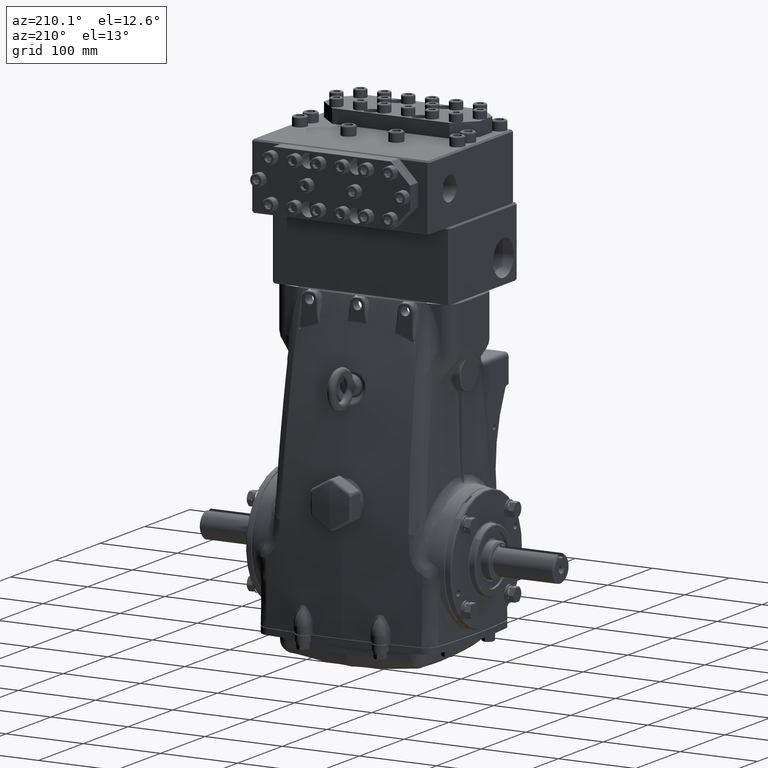
[diagram: clean part render]
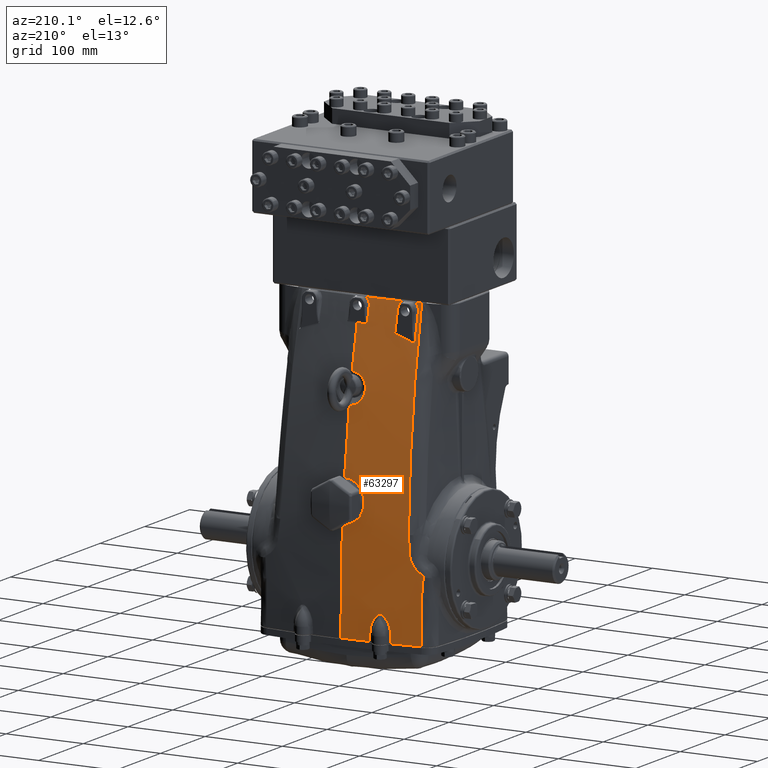
[diagram: same view with one face highlighted and labeled with its STEP entity id]
A machine part, auxiliary view. The second image highlights one B-rep face of the part: STEP entity #63297.
In plain terms, the highlighted face is a freeform B-spline surface patch.
Its self-contained STEP definition (entity closure, byte-faithful):
#41 = CARTESIAN_POINT ( 'NONE',  ( -1.329266084525905889, 2.058871190780679594, 11.77165354330707814 ) ) ;
#277 = VERTEX_POINT ( 'NONE', #111530 ) ;
#440 = CARTESIAN_POINT ( 'NONE',  ( -0.4894363973808239510, 2.826974963494966797, 8.292067753824921894 ) ) ;
#641 = CARTESIAN_POINT ( 'NONE',  ( -1.472692996134396193, 3.745382839037164402, -3.464566929133851669 ) ) ;
#791 = CARTESIAN_POINT ( 'NONE',  ( -1.449918851696318844, 3.753734697060149283, -2.974230008064877584 ) ) ;
#845 = CARTESIAN_POINT ( 'NONE',  ( -1.965461425135741402, 2.037939149699900643, 11.72106625223799448 ) ) ;
#1077 = CARTESIAN_POINT ( 'NONE',  ( -3.957781727276481476, 3.531041095253700135, -1.223694571038026702 ) ) ;
#1084 = CARTESIAN_POINT ( 'NONE',  ( -0.3402257065718306550, 2.366954046119728705, 10.57045864918167410 ) ) ;
#1222 = CARTESIAN_POINT ( 'NONE',  ( -1.787529890359793816, 3.726602407717397814, -3.618486580175581224 ) ) ;
#1369 = EDGE_CURVE ( 'NONE', #115554, #41796, #42658, .T. ) ;
#1383 = CARTESIAN_POINT ( 'NONE',  ( -1.706781216719245320, 3.744477168076211004, -2.308692450912484873 ) ) ;
#1388 = CARTESIAN_POINT ( 'NONE',  ( -0.4303187408758848420, 3.481930908896279764, 3.689970504205117408 ) ) ;
#1439 = CARTESIAN_POINT ( 'NONE',  ( -1.384605280618740331, 2.068704045436494887, 11.72107760048991310 ) ) ;
#1807 = CARTESIAN_POINT ( 'NONE',  ( -2.617725852477320814, 1.978464825337433730, 11.77166119179824477 ) ) ;
#1930 = CARTESIAN_POINT ( 'NONE',  ( -2.982365941603586812, 3.639752946394433142, -3.424424307866333006 ) ) ;
#1963 = CARTESIAN_POINT ( 'NONE',  ( -0.9321275115645024645, 3.518956238178291507, 3.200816758372077242 ) ) ;
#2101 = EDGE_CURVE ( 'NONE', #55108, #86129, #98032, .T. ) ;
#2247 = EDGE_CURVE ( 'NONE', #46825, #6960, #107942, .T. ) ;
#2264 = CARTESIAN_POINT ( 'NONE',  ( -0.5099476513739255035, 2.249991768607825904, 11.07376066516778756 ) ) ;
#2278 = CARTESIAN_POINT ( 'NONE',  ( -1.954602083126994350, 2.089217607679715094, 11.51134458017273232 ) ) ;
#2345 = VERTEX_POINT ( 'NONE', #59197 ) ;
#2388 = CARTESIAN_POINT ( 'NONE',  ( -3.031647876830131594, 3.734765732253502168, 1.666088105590217028 ) ) ;
#2547 = CARTESIAN_POINT ( 'NONE',  ( -1.014872599790400898, 3.576041965582272830, 2.522746861386393924 ) ) ;
#2701 = CARTESIAN_POINT ( 'NONE',  ( -0.4599714335869150572, 3.777865617049620539, -3.424427549298868279 ) ) ;
#2773 = EDGE_CURVE ( 'NONE', #96540, #55108, #50862, .T. ) ;
#2961 = CARTESIAN_POINT ( 'NONE',  ( -3.551367010160706883, 3.577911039005028826, -3.567180029828333154 ) ) ;
#3041 = EDGE_CURVE ( 'NONE', #12846, #93610, #28042, .T. ) ;
#3122 = CARTESIAN_POINT ( 'NONE',  ( -0.7111873637985548502, 3.626198381194201570, 1.983667925569553514 ) ) ;
#3126 = CARTESIAN_POINT ( 'NONE',  ( -0.3291895582289230404, 2.097288294947163401, 11.72108940143261435 ) ) ;
#3156 = EDGE_CURVE ( 'NONE', #28937, #68908, #16617, .T. ) ;
#3264 = CARTESIAN_POINT ( 'NONE',  ( -4.025192622172919954, 3.497319579811000612, -0.2757587623723024572 ) ) ;
#3549 = CARTESIAN_POINT ( 'NONE',  ( -4.162177659181298672, 1.810916226730489464, 11.77166884028940608 ) ) ;
#3703 = CARTESIAN_POINT ( 'NONE',  ( -0.1361358680656545306, 3.653276932960717094, 1.710316505711221069 ) ) ;
#3707 = CARTESIAN_POINT ( 'NONE',  ( -0.5099501571128451927, 2.188913224549203562, 11.33098419473978957 ) ) ;
#4144 = CARTESIAN_POINT ( 'NONE',  ( -4.507921337194059852, 2.987087808317399951, 6.788105265077242656 ) ) ;
#4300 = CARTESIAN_POINT ( 'NONE',  ( -3.065777193951899626, 1.951112401953881914, 11.71431663168090509 ) ) ;
#4505 = B_SPLINE_CURVE_WITH_KNOTS ( 'NONE', 3,
 ( #90575, #8794, #45233, #81650, #118036, #36299, #72692, #109063, #27326, #63733, #100129, #18346, #54794, #91165, #9365, #45803, #82228, #440, #36888, #73278 ),
 .UNSPECIFIED., .F., .F.,
 ( 4, 2, 2, 2, 2, 2, 2, 2, 2, 4 ),
 ( -5.999999999984440527E-08, 0.001004507607140069309, 0.002009075214280138695, 0.004018210428560277034, 0.006027345642840414505, 0.008036480857120553711, 0.01004561607140069292, 0.01105018367854074084, 0.01205475128568078702, 0.01607302171424088155 ),
 .UNSPECIFIED. ) ;
#4580 = CARTESIAN_POINT ( 'NONE',  ( -2.130487266154514447, 3.718528088726727354, -2.207560004171498669 ) ) ;
#4728 = CARTESIAN_POINT ( 'NONE',  ( -4.883510096892714536, 3.397906360537572557, -3.515873479481093078 ) ) ;
#5081 = B_SPLINE_CURVE_WITH_KNOTS ( 'NONE', 3,
 ( #48072, #84500, #2701, #39147, #75528, #111920 ),
 .UNSPECIFIED., .F., .F.,
 ( 4, 2, 4 ),
 ( 0.0000000000000000000, 0.5000000000000000000, 1.000000000000000000 ),
 .UNSPECIFIED. ) ;
#5166 = CARTESIAN_POINT ( 'NONE',  ( -2.408966609891268984, 3.697616689206262297, -2.634289480555723539 ) ) ;
#5266 = CARTESIAN_POINT ( 'NONE',  ( -0.7200750200131735834, 2.892394000260049225, 7.901765125337210982 ) ) ;
#5320 = CARTESIAN_POINT ( 'NONE',  ( -5.310323687472517484, 1.636152634401786710, 11.77167648878057982 ) ) ;
#5851 = CARTESIAN_POINT ( 'NONE',  ( -0.6442825459768660723, 2.987672721252179642, 7.353421126140273323 ) ) ;
#5902 = CARTESIAN_POINT ( 'NONE',  ( -5.472957139144666527, 1.607461474635036858, 11.77165354330708702 ) ) ;
#5979 = CARTESIAN_POINT ( 'NONE',  ( -0.5099501571128451927, 2.188913224549203562, 11.33098419473978957 ) ) ;
#6448 = CARTESIAN_POINT ( 'NONE',  ( -0.2467602516829825732, 3.048793748277973226, 7.013008565942077333 ) ) ;
#6624 = CARTESIAN_POINT ( 'NONE',  ( 1.997120727806269592E-15, 3.777525954651690832, -3.567180029828339816 ) ) ;
#6746 = CARTESIAN_POINT ( 'NONE',  ( -3.216296056407198733, 3.322383220422969519, 3.684119343499719257 ) ) ;
#6778 = CARTESIAN_POINT ( 'NONE',  ( -2.941961549966115808, 2.367296412994855270, 9.943150386837972476 ) ) ;
#6960 = VERTEX_POINT ( 'NONE', #28489 ) ;
#7156 = CARTESIAN_POINT ( 'NONE',  ( -2.730575176707549353E-15, 3.364668361119688811, 4.849011172016416182 ) ) ;
#7228 = CARTESIAN_POINT ( 'NONE',  ( -0.3105896146162692717, 2.085518312412143693, 11.77166884028937055 ) ) ;
#7815 = CARTESIAN_POINT ( 'NONE',  ( -0.5765648053574754517, 3.305574139112502419, 6.788105265077318151 ) ) ;
#7940 = CARTESIAN_POINT ( 'NONE',  ( -3.799504976992992500, 3.518995280183945695, -0.09031071293400218247 ) ) ;
#8400 = CARTESIAN_POINT ( 'NONE',  ( -0.7357084900246616543, 3.770215140498182738, -3.515873479481097519 ) ) ;
#8464 = EDGE_CURVE ( 'NONE', #25572, #114179, #23899, .T. ) ;
#8522 = CARTESIAN_POINT ( 'NONE',  ( -3.365474024887549209, 3.538810821463818534, 0.5950371287573616996 ) ) ;
#8667 = CARTESIAN_POINT ( 'NONE',  ( -2.860863417510001838, 1.995877690506875357, 11.61009406587339576 ) ) ;
#8794 = CARTESIAN_POINT ( 'NONE',  ( -0.01318330193096468525, 2.800346002481634233, 8.457339776401219922 ) ) ;
#8988 = CARTESIAN_POINT ( 'NONE',  ( -1.329266271122687249, 2.058865548201455287, 11.77167648878057093 ) ) ;
#9255 = B_SPLINE_CURVE_WITH_KNOTS ( 'NONE', 3,
 ( #82635, #845, #37293, #73686, #110063, #28307, #64726, #101121, #19342, #55779, #92162, #10358, #46797, #83237, #1439, #37885, #74262, #110639, #28899, #65325, #101714 ),
 .UNSPECIFIED., .F., .F.,
 ( 4, 2, 1, 1, 1, 2, 2, 1, 1, 2, 2, 2, 4 ),
 ( 0.3066511149771164457, 0.4434327218007036997, 0.4776281235066003328, 0.4947258243595484828, 0.4990002495727854370, 0.4995345527244400285, 0.5000688558760946201, 0.5011374621794038031, 0.5032746747860222802, 0.5118235252124958556, 0.5802143286242846809, 0.7169959354478618874, 0.8537775422714393159 ),
 .UNSPECIFIED. ) ;
#9302 = ORIENTED_EDGE ( 'NONE', *, *, #23759, .T. ) ;
#9365 = CARTESIAN_POINT ( 'NONE',  ( -0.4031742814179430368, 2.817228728147592509, 8.351817002820158820 ) ) ;
#9554 = CARTESIAN_POINT ( 'NONE',  ( -1.587140418288391031, 2.046886610755830116, 11.77165354330708347 ) ) ;
#9816 = VERTEX_POINT ( 'NONE', #69553 ) ;
#10001 = EDGE_CURVE ( 'NONE', #114179, #24720, #9255, .T. ) ;
#10004 = CARTESIAN_POINT ( 'NONE',  ( -3.957806744477383898, 3.530638751054765212, -3.424421330816489029 ) ) ;
#10089 = CARTESIAN_POINT ( 'NONE',  ( -1.449436370701254084, 3.752553886590621168, -3.068352961861494865 ) ) ;
#10152 = CARTESIAN_POINT ( 'NONE',  ( -1.788511416538851151, 3.729546461257702727, -3.464566929133858775 ) ) ;
#10305 = CARTESIAN_POINT ( 'NONE',  ( -1.651241377271888577, 3.747397938625225411, -2.384462525471408245 ) ) ;
#10311 = CARTESIAN_POINT ( 'NONE',  ( -0.1709548659399156012, 3.476263660354039775, 3.769316298084465000 ) ) ;
#10358 = CARTESIAN_POINT ( 'NONE',  ( -1.519630078844578458, 2.062335132724165909, 11.72107525303391817 ) ) ;
#10743 = CARTESIAN_POINT ( 'NONE',  ( -2.146033794240613801, 3.704131405258187737, -3.618486580175577672 ) ) ;
#10897 = CARTESIAN_POINT ( 'NONE',  ( -1.939589167925357627, 3.730718792896203784, -2.138605117172201364 ) ) ;
#10903 = CARTESIAN_POINT ( 'NONE',  ( -0.8830861765875457348, 3.511900387583742233, 3.290520753044550606 ) ) ;
#11013 = VERTEX_POINT ( 'NONE', #57660 ) ;
#11209 = CARTESIAN_POINT ( 'NONE',  ( -1.926166063787955851, 2.116497855686600094, 11.40493403542319939 ) ) ;
#11327 = CARTESIAN_POINT ( 'NONE',  ( -3.016919662918424283, 1.943005259688135311, 11.77166119179826786 ) ) ;
#11487 = CARTESIAN_POINT ( 'NONE',  ( -1.038168447748732071, 3.554005316135557813, 2.775159779836845697 ) ) ;
#11548 = CARTESIAN_POINT ( 'NONE',  ( -4.012125609158470496, 3.504591151798397863, -0.4380329796275670429 ) ) ;
#11858 = VERTEX_POINT ( 'NONE', #22711 ) ;
#11911 = CARTESIAN_POINT ( 'NONE',  ( -3.527390907750791449, 3.682618538920412021, 1.666088105590235902 ) ) ;
#12070 = CARTESIAN_POINT ( 'NONE',  ( -0.8730434109972416978, 3.607519185111385251, 2.179175908738508749 ) ) ;
#12488 = CARTESIAN_POINT ( 'NONE',  ( -3.910294049947788508, 3.534388280533546478, -3.567180029828337595 ) ) ;
#12652 = CARTESIAN_POINT ( 'NONE',  ( -0.2691537190594036622, 3.650592726429606749, 1.736892705629156097 ) ) ;
#12657 = CARTESIAN_POINT ( 'NONE',  ( -0.4941935595090318767, 2.158784960329666269, 11.45830862399616024 ) ) ;
#12659 = CARTESIAN_POINT ( 'NONE',  ( -2.761447177340050629, 1.977739888121200718, 11.72104401814720553 ) ) ;
#12790 = CARTESIAN_POINT ( 'NONE',  ( -3.957575300856117639, 3.502685695250202347, -0.1830250696565230983 ) ) ;
#12846 = VERTEX_POINT ( 'NONE', #10089 ) ;
#12923 = VERTEX_POINT ( 'NONE', #23779 ) ;
#13077 = CARTESIAN_POINT ( 'NONE',  ( -4.471409939085263296, 1.768526879999564150, 11.77166884028936167 ) ) ;
#13512 = CARTESIAN_POINT ( 'NONE',  ( -2.041536747216510683, 3.724301690662265685, -2.152060709845910136 ) ) ;
#13668 = CARTESIAN_POINT ( 'NONE',  ( -4.822432312687361389, 2.939410238287082588, 6.788105265077239991 ) ) ;
#14097 = CARTESIAN_POINT ( 'NONE',  ( -3.269204732900450772, 3.494166244084205619, 1.549803905489431921 ) ) ;
#14098 = CARTESIAN_POINT ( 'NONE',  ( -2.373803387733699477, 3.700704596208036712, -2.547482343565529828 ) ) ;
#14202 = CARTESIAN_POINT ( 'NONE',  ( -0.6889935401197521125, 2.875098908490986815, 8.003748954074408672 ) ) ;
#14250 = CARTESIAN_POINT ( 'NONE',  ( -5.167007128223317203, 3.352240164523032195, -3.515873479481088193 ) ) ;
#14256 = CARTESIAN_POINT ( 'NONE',  ( -1.448827917767014251, 3.751064775926534978, -3.187050668098594386 ) ) ;
#14440 = ORIENTED_EDGE ( 'NONE', *, *, #110945, .T. ) ;
#14798 = CARTESIAN_POINT ( 'NONE',  ( -0.7044343831057220395, 2.964847517012017875, 7.482613239523253412 ) ) ;
#14849 = CARTESIAN_POINT ( 'NONE',  ( -5.472957139144666527, 1.607455839589877478, 11.77167648878057982 ) ) ;
#15019 = VERTEX_POINT ( 'NONE', #14097 ) ;
#15398 = CARTESIAN_POINT ( 'NONE',  ( -0.3764466558203555246, 3.037604824634332346, 7.074679377445029616 ) ) ;
#15589 = CARTESIAN_POINT ( 'NONE',  ( -1.498576931234722276E-15, 3.879607779226441622, 1.666088105590230795 ) ) ;
#15712 = CARTESIAN_POINT ( 'NONE',  ( -3.257994996955968503, 3.467318692098095845, 1.977233875776326810 ) ) ;
#15894 = B_SPLINE_CURVE_WITH_KNOTS ( 'NONE', 3,
 ( #52564, #88966, #7156, #43596 ),
 .UNSPECIFIED., .F., .F.,
 ( 4, 4 ),
 ( 0.3170959034011918143, 0.5276515795325527058 ),
 .UNSPECIFIED. ) ;
#16006 = CARTESIAN_POINT ( 'NONE',  ( -0.004466962589221780411, 3.056492043544570603, 6.970738724759982574 ) ) ;
#16124 = EDGE_CURVE ( 'NONE', #2345, #11858, #5081, .T. ) ;
#16179 = CARTESIAN_POINT ( 'NONE',  ( -0.09192353991820584325, 3.777525954651690832, -3.567180029828339816 ) ) ;
#16303 = CARTESIAN_POINT ( 'NONE',  ( -3.057369498427757737, 2.057451332273736444, 11.28228488240600136 ) ) ;
#16394 = ORIENTED_EDGE ( 'NONE', *, *, #104904, .T. ) ;
#16617 = B_SPLINE_CURVE_WITH_KNOTS ( 'NONE', 3,
 ( #49654, #86081, #4300, #40740 ),
 .UNSPECIFIED., .F., .F.,
 ( 4, 4 ),
 ( -2.554761101910201521E-05, 0.0008907001007666442895 ),
 .UNSPECIFIED. ) ;
#16778 = CARTESIAN_POINT ( 'NONE',  ( -0.6073683692680799107, 2.081168051508167416, 11.77166884028946114 ) ) ;
#17369 = CARTESIAN_POINT ( 'NONE',  ( -0.8097481615696119350, 3.300345402231158687, 6.788105265077305717 ) ) ;
#17470 = B_SPLINE_SURFACE_WITH_KNOTS ( 'NONE', 3, 3, ( 
 ( #69945, #106300, #24580, #60979, #97382, #15589, #52033, #88433, #6624, #43082 ),
 ( #79492, #115872, #34136, #70540, #106895, #25181, #61579, #97984, #16179, #52635 ),
 ( #89038, #7228, #43665, #80083, #116468, #34729, #71132, #107488, #25756, #62169 ),
 ( #98579, #16778, #53226, #89611, #7815, #44262, #80675, #117060, #35311, #71709 ),
 ( #108087, #26347, #62751, #99166, #17369, #53810, #90198, #8400, #44837, #81259 ),
 ( #117646, #35902, #72298, #108671, #26936, #63344, #99746, #17953, #54390, #90777 ),
 ( #8988, #45414, #81832, #41, #36495, #72892, #109257, #27514, #63919, #100331 ),
 ( #18540, #54978, #91356, #9554, #45994, #82429, #641, #37084, #73464, #109846 ),
 ( #28105, #64509, #100906, #19122, #55561, #91951, #10152, #46590, #83010, #1222 ),
 ( #37674, #74048, #110428, #28680, #65107, #101503, #19730, #56159, #92540, #10743 ),
 ( #47177, #83595, #1807, #38255, #74630, #111020, #29272, #65694, #102091, #20323 ),
 ( #56744, #93122, #11327, #47759, #84185, #2388, #38845, #75216, #111601, #29867 ),
 ( #66279, #102663, #20898, #57319, #93704, #11911, #48334, #84766, #2961, #39422 ),
 ( #75800, #112181, #30444, #66857, #103242, #21485, #57907, #94281, #12488, #48927 ),
 ( #85350, #3549, #40003, #76383, #112768, #31032, #67445, #103830, #22068, #58504 ),
 ( #94876, #13077, #49508, #85936, #4144, #40594, #76970, #113345, #31619, #68025 ),
 ( #104413, #22658, #59079, #95462, #13668, #50099, #86518, #4728, #41174, #77565 ),
 ( #113938, #32200, #68610, #104999, #23257, #59678, #96049, #14250, #50691, #87113 ),
 ( #5320, #41752, #78148, #114534, #32809, #69216, #105588, #23847, #60267, #96646 ),
 ( #14849, #51295, #87707, #5902, #42359, #78750, #115136, #33400, #69800, #106174 ) ),
 .UNSPECIFIED., .F., .F., .F.,
 ( 4, 1, 1, 1, 1, 1, 1, 1, 1, 1, 1, 1, 1, 1, 1, 1, 1, 4 ),
 ( 4, 3, 3, 4 ),
 ( 0.0000000000000000000, 0.01992422968235842140, 0.03456898174906491983, 0.05424769559357718596, 0.06487690519641009512, 0.08584053764134867703, 0.09628566213973675791, 0.1159744118838200583, 0.1459144473511018725, 0.1632236321469078544, 0.1985379101840372418, 0.2282313374881382306, 0.2584266254959273201, 0.2665154733350832417, 0.2978309836667631938, 0.3195247496290842815, 0.3280157347226483333, 0.3567612557956247876 ),
 ( -1.534748082744804150E-06, 0.0000000000000000000, 1.000000000000000000, 1.010000000000000009 ),
 .UNSPECIFIED. ) ;
#17484 = B_SPLINE_CURVE_WITH_KNOTS ( 'NONE', 3,
 ( #73530, #109907, #28161, #64568 ),
 .UNSPECIFIED., .F., .F.,
 ( 4, 4 ),
 ( 0.0000000000000000000, 0.09124961659355938781 ),
 .UNSPECIFIED. ) ;
#17501 = CARTESIAN_POINT ( 'NONE',  ( -3.433946519524526675, 3.541807891261862462, 0.3751013449414513090 ) ) ;
#17644 = CARTESIAN_POINT ( 'NONE',  ( -2.789159188951548352, 1.981357588773585032, 11.69623137975671590 ) ) ;
#17953 = CARTESIAN_POINT ( 'NONE',  ( -0.9926801318544209440, 3.763193004573095468, -3.515873479481095298 ) ) ;
#18346 = CARTESIAN_POINT ( 'NONE',  ( -0.3334209560331198863, 2.811199870974268933, 8.389089763383898557 ) ) ;
#18540 = CARTESIAN_POINT ( 'NONE',  ( -1.587140593936352539, 2.046880967142413965, 11.77167648878057804 ) ) ;
#19053 = B_SPLINE_CURVE_WITH_KNOTS ( 'NONE', 3,
 ( #63024, #99431, #17644, #54082, #90463, #8667, #45113, #81534, #117911, #36175, #72575, #108940, #27205, #63618 ),
 .UNSPECIFIED., .F., .F.,
 ( 4, 2, 2, 2, 2, 2, 4 ),
 ( 0.002575890219645993184, 0.004021200030230096152, 0.005466509840814199120, 0.008357129461982540364, 0.009802439272566635525, 0.01124774908315072895, 0.01413836870431875795 ),
 .UNSPECIFIED. ) ;
#19122 = CARTESIAN_POINT ( 'NONE',  ( -1.886664034444553328, 2.030797768947446347, 11.77165354330708347 ) ) ;
#19234 = VERTEX_POINT ( 'NONE', #84113 ) ;
#19277 = CARTESIAN_POINT ( 'NONE',  ( -1.561445849148193288, 3.751560799230096332, -2.547479701091002635 ) ) ;
#19283 = CARTESIAN_POINT ( 'NONE',  ( -0.03439482075848510068, 3.475299937072046319, 3.782957108726558992 ) ) ;
#19286 = B_SPLINE_CURVE_WITH_KNOTS ( 'NONE', 3,
 ( #102742, #20975, #57397, #93783 ),
 .UNSPECIFIED., .F., .F.,
 ( 4, 4 ),
 ( 0.0000000000000000000, 1.000000000000000000 ),
 .UNSPECIFIED. ) ;
#19333 = ORIENTED_EDGE ( 'NONE', *, *, #92201, .T. ) ;
#19342 = CARTESIAN_POINT ( 'NONE',  ( -1.526628632518999940, 2.061996063256174683, 11.72107512962103648 ) ) ;
#19730 = CARTESIAN_POINT ( 'NONE',  ( -2.146720748381131028, 3.707084763531256488, -3.464566929133854778 ) ) ;
#19880 = CARTESIAN_POINT ( 'NONE',  ( -1.894064700851531446, 3.733532004044151087, -2.152060852376258104 ) ) ;
#19887 = CARTESIAN_POINT ( 'NONE',  ( -0.7116471241040901452, 3.495832151705702273, 3.500780652403853388 ) ) ;
#20323 = CARTESIAN_POINT ( 'NONE',  ( -2.592301817561208921, 3.670649920850951986, -3.618486580175592771 ) ) ;
#20479 = CARTESIAN_POINT ( 'NONE',  ( -1.029536805856871462, 3.545372507537897455, 2.877148303763660042 ) ) ;
#20538 = CARTESIAN_POINT ( 'NONE',  ( -3.958060253309640064, 3.528091304124755911, -1.065759574945015498 ) ) ;
#20560 = CARTESIAN_POINT ( 'NONE',  ( -0.3291895582289230404, 2.097288294947163401, 11.72108940143261435 ) ) ;
#20781 = CARTESIAN_POINT ( 'NONE',  ( -2.088656469346350963, 2.032627175226184413, 11.70908604693107158 ) ) ;
#20898 = CARTESIAN_POINT ( 'NONE',  ( -3.480378906165389807, 1.894771441545521018, 11.77166119179825365 ) ) ;
#20900 = CARTESIAN_POINT ( 'NONE',  ( -1.996016727116062484, 3.727187006497952204, -2.138605013861039073 ) ) ;
#20975 = CARTESIAN_POINT ( 'NONE',  ( -3.066175420260645712, 1.949430059391351611, 11.72103353889276711 ) ) ;
#21056 = CARTESIAN_POINT ( 'NONE',  ( -0.9080612999020492015, 3.602020801704116426, 2.237857949569839633 ) ) ;
#21103 = ORIENTED_EDGE ( 'NONE', *, *, #63521, .T. ) ;
#21195 = VERTEX_POINT ( 'NONE', #88071 ) ;
#21335 = B_SPLINE_CURVE_WITH_KNOTS ( 'NONE', 3,
 ( #74818, #111205, #29448, #65870 ),
 .UNSPECIFIED., .F., .F.,
 ( 4, 4 ),
 ( 5.721958498152796815E-17, 0.03613467663765863869 ),
 .UNSPECIFIED. ) ;
#21485 = CARTESIAN_POINT ( 'NONE',  ( -3.878130381996969245, 3.640430791935331811, 1.666088105590233237 ) ) ;
#21642 = CARTESIAN_POINT ( 'NONE',  ( -0.4613971952366459628, 3.643482884971372293, 1.807818510994648298 ) ) ;
#21647 = CARTESIAN_POINT ( 'NONE',  ( -0.4706159023382840423, 2.142253415653725845, 11.52856659615803636 ) ) ;
#21775 = CARTESIAN_POINT ( 'NONE',  ( -3.992174508698265178, 3.499121618092366326, -0.2063480383189231493 ) ) ;
#22068 = CARTESIAN_POINT ( 'NONE',  ( -4.271182549770040637, 3.487141134498844330, -3.567180029828350918 ) ) ;
#22393 = ORIENTED_EDGE ( 'NONE', *, *, #2101, .T. ) ;
#22658 = CARTESIAN_POINT ( 'NONE',  ( -4.792045262098615588, 1.720270123346609781, 11.77166884028934390 ) ) ;
#22711 = CARTESIAN_POINT ( 'NONE',  ( -1.447214697635420100, 3.747031218138626496, -3.424426838814072394 ) ) ;
#22800 = CARTESIAN_POINT ( 'NONE',  ( -4.024767326900356323, 3.497556249445210597, -0.2810403410606585051 ) ) ;
#23095 = CARTESIAN_POINT ( 'NONE',  ( -2.284190644097326750, 3.707775836355402976, -2.384464635550700429 ) ) ;
#23205 = CARTESIAN_POINT ( 'NONE',  ( -0.6153363000617203538, 2.851363484753544508, 8.145096329726753126 ) ) ;
#23239 = CARTESIAN_POINT ( 'NONE',  ( -2.614932794956200729E-16, 3.770281652882307988, -0.002669951958018486858 ) ) ;
#23257 = CARTESIAN_POINT ( 'NONE',  ( -5.126321490106023226, 2.891003839227130889, 6.788105265077255979 ) ) ;
#23759 = EDGE_CURVE ( 'NONE', #12923, #96540, #114225, .T. ) ;
#23779 = CARTESIAN_POINT ( 'NONE',  ( -3.957781727276481476, 3.531041095253700135, -1.223694571038026702 ) ) ;
#23795 = CARTESIAN_POINT ( 'NONE',  ( -0.7374127628471853768, 2.934633352471483825, 7.655894481554959441 ) ) ;
#23847 = CARTESIAN_POINT ( 'NONE',  ( -5.341353497338586109, 3.322595619793587307, -3.515873479481098851 ) ) ;
#23899 = B_SPLINE_CURVE_WITH_KNOTS ( 'NONE', 3,
 ( #56638, #93014, #11209, #47642, #84069, #2278, #38731, #75108, #111489, #29745, #66165, #102559, #20781, #57206 ),
 .UNSPECIFIED., .F., .F.,
 ( 4, 2, 2, 2, 2, 2, 4 ),
 ( 0.0000000000000000000, 0.002875428016093771466, 0.004313142024140652862, 0.005750856032187534259, 0.008626284048281444503, 0.01006399805632846554, 0.01150171206437548659 ),
 .UNSPECIFIED. ) ;
#24399 = CARTESIAN_POINT ( 'NONE',  ( -0.5032573366025500095, 3.020097481596065059, 7.171771856341910834 ) ) ;
#24580 = CARTESIAN_POINT ( 'NONE',  ( -5.245150282911112486E-15, 2.086612294879966356, 11.77166119179825188 ) ) ;
#24720 = VERTEX_POINT ( 'NONE', #20560 ) ;
#24984 = CARTESIAN_POINT ( 'NONE',  ( -0.02264095333679216199, 3.056430186302616647, 6.971077940882890900 ) ) ;
#25181 = CARTESIAN_POINT ( 'NONE',  ( -0.09979918509608438904, 3.879607779226441622, 1.666088105590231017 ) ) ;
#25239 = CARTESIAN_POINT ( 'NONE',  ( -2.485991824541025075, 3.684251757287082540, -3.305742822090556921 ) ) ;
#25299 = CARTESIAN_POINT ( 'NONE',  ( -3.091790677973859314, 2.424351262851354605, 9.608981028187290718 ) ) ;
#25568 = CARTESIAN_POINT ( 'NONE',  ( -1.922122788353090472, 2.134331509641284264, 11.33102910461568946 ) ) ;
#25572 = VERTEX_POINT ( 'NONE', #63608 ) ;
#25756 = CARTESIAN_POINT ( 'NONE',  ( -0.2538457843043768758, 3.776827888500509545, -3.567180029828336707 ) ) ;
#26347 = CARTESIAN_POINT ( 'NONE',  ( -0.8465839321215695712, 2.075546754490782408, 11.77166884028944338 ) ) ;
#26471 = CARTESIAN_POINT ( 'NONE',  ( -3.520116567744814517, 3.539435181202170710, 0.2121852385927017748 ) ) ;
#26649 = B_SPLINE_CURVE_WITH_KNOTS ( 'NONE', 3,
 ( #72449, #108817, #27086, #63496 ),
 .UNSPECIFIED., .F., .F.,
 ( 4, 4 ),
 ( 0.07683548032053984234, 0.2183527470823627969 ),
 .UNSPECIFIED. ) ;
#26936 = CARTESIAN_POINT ( 'NONE',  ( -1.073700811049923098, 3.292464470852662473, 6.788105265077283512 ) ) ;
#26988 = CARTESIAN_POINT ( 'NONE',  ( 0.0000000000000000000, 3.654130161681601319, 1.701892301469291491 ) ) ;
#27086 = CARTESIAN_POINT ( 'NONE',  ( -4.439592998116571196E-15, 2.668886950694707050, 9.166073472058796412 ) ) ;
#27205 = CARTESIAN_POINT ( 'NONE',  ( -2.942020481254552067, 2.046561903974366992, 11.36797971415080433 ) ) ;
#27326 = CARTESIAN_POINT ( 'NONE',  ( -0.2095222004877407840, 2.804270214960580709, 8.432433905063289714 ) ) ;
#27514 = CARTESIAN_POINT ( 'NONE',  ( -1.207279439042221458, 3.755709129353599351, -3.515873479481089525 ) ) ;
#28042 = B_SPLINE_CURVE_WITH_KNOTS ( 'NONE', 3,
 ( #82580, #791, #37238, #73625, #110004, #28255, #64667, #101065, #19277, #55719, #92103, #10305, #46743, #83177, #1383, #37831, #74203, #110579, #28840, #65263, #101655, #19880, #56311, #92698, #10897, #47332 ),
 .UNSPECIFIED., .F., .F.,
 ( 4, 2, 2, 2, 2, 2, 2, 2, 2, 2, 2, 2, 4 ),
 ( 1.387778780781445521E-17, 0.007071297604193001012, 0.01060694640628949414, 0.01237477080733773854, 0.01414259520838598294, 0.01767824401048250643, 0.01944606841153077859, 0.02121389281257905074, 0.02298171721362732289, 0.02474954161467559505, 0.02651736601572386720, 0.02740127821624800328, 0.02828519041677213935 ),
 .UNSPECIFIED. ) ;
#28105 = CARTESIAN_POINT ( 'NONE',  ( -1.886664185084095058, 2.030792124946561916, 11.77167648878057804 ) ) ;
#28161 = CARTESIAN_POINT ( 'NONE',  ( -2.856097661922644804, 1.969410727644801629, 11.72104082606149156 ) ) ;
#28255 = CARTESIAN_POINT ( 'NONE',  ( -1.526172145244721667, 3.752883460819519179, -2.634286891848193868 ) ) ;
#28307 = CARTESIAN_POINT ( 'NONE',  ( -1.554068961768650059, 2.060658470086919714, 11.72107464267742749 ) ) ;
#28489 = CARTESIAN_POINT ( 'NONE',  ( -3.957806744477383898, 3.530638751054765212, -3.424421330816489029 ) ) ;
#28680 = CARTESIAN_POINT ( 'NONE',  ( -2.215416162432855884, 2.009266544497397167, 11.77165354330707991 ) ) ;
#28840 = CARTESIAN_POINT ( 'NONE',  ( -1.805088076041678757, 3.738895607890095008, -2.207559827024686339 ) ) ;
#28846 = CARTESIAN_POINT ( 'NONE',  ( -0.6068375926502829198, 3.489405121058110737, 3.587352563485997514 ) ) ;
#28899 = CARTESIAN_POINT ( 'NONE',  ( -0.5815860383873308059, 2.093982616539534103, 11.72108839206910247 ) ) ;
#28937 = VERTEX_POINT ( 'NONE', #112408 ) ;
#29272 = CARTESIAN_POINT ( 'NONE',  ( -2.592553540551687519, 3.673629830062105750, -3.464566929133870321 ) ) ;
#29425 = CARTESIAN_POINT ( 'NONE',  ( -1.005285615730921345, 3.534247708729552073, 3.010826219964609418 ) ) ;
#29448 = CARTESIAN_POINT ( 'NONE',  ( -2.941979610148209190, 2.268880967349457212, 10.40703492315793532 ) ) ;
#29733 = CARTESIAN_POINT ( 'NONE',  ( -1.962342473854572944, 3.729300037346045649, -2.136422643878229000 ) ) ;
#29745 = CARTESIAN_POINT ( 'NONE',  ( -2.037370004928389378, 2.049190603513819653, 11.65497885026384495 ) ) ;
#29867 = CARTESIAN_POINT ( 'NONE',  ( -3.039232901174109269, 3.631047074897840510, -3.618486580175610090 ) ) ;
#30020 = CARTESIAN_POINT ( 'NONE',  ( -0.9835405016551634905, 3.586382041439576174, 2.407730420997296061 ) ) ;
#30444 = CARTESIAN_POINT ( 'NONE',  ( -3.815064318011901268, 1.855201366150352582, 11.77166119179825365 ) ) ;
#30597 = CARTESIAN_POINT ( 'NONE',  ( -0.6055171224854709600, 3.634657132306465588, 1.897062945796126998 ) ) ;
#30602 = CARTESIAN_POINT ( 'NONE',  ( -0.3946631889373198865, 2.112669446421912678, 11.65499385749306605 ) ) ;
#30732 = CARTESIAN_POINT ( 'NONE',  ( -4.017520617434933605, 3.497059505317804184, -0.2399026279863140931 ) ) ;
#30733 = VERTEX_POINT ( 'NONE', #68398 ) ;
#31032 = CARTESIAN_POINT ( 'NONE',  ( -4.234366365864948634, 3.594184690109612834, 1.666088105590221025 ) ) ;
#31242 = VERTEX_POINT ( 'NONE', #38223 ) ;
#31619 = CARTESIAN_POINT ( 'NONE',  ( -4.581674134989896174, 3.443365732824904768, -3.567180029828362908 ) ) ;
#31784 = B_SPLINE_CURVE_WITH_KNOTS ( 'NONE', 3,
 ( #82873, #1084, #37535, #73916 ),
 .UNSPECIFIED., .F., .F.,
 ( 4, 4 ),
 ( 0.0000000000000000000, 0.01296156126120937696 ),
 .UNSPECIFIED. ) ;
#32049 = CARTESIAN_POINT ( 'NONE',  ( -2.228721276398926587, 3.711805618293231301, -2.308693809652148765 ) ) ;
#32152 = CARTESIAN_POINT ( 'NONE',  ( -0.5732969838139686525, 2.841744034922009110, 8.202815505710013610 ) ) ;
#32200 = CARTESIAN_POINT ( 'NONE',  ( -5.106079816970845009, 1.670500435004840023, 11.77166884028936522 ) ) ;
#32643 = CARTESIAN_POINT ( 'NONE',  ( -2.484731854132021578, 3.688951047317098997, -2.974232571966362038 ) ) ;
#32756 = CARTESIAN_POINT ( 'NONE',  ( -0.7403117160652853412, 2.916286337545837881, 7.762095207934012642 ) ) ;
#32809 = CARTESIAN_POINT ( 'NONE',  ( -5.320632626100432638, 2.858219837753329440, 6.788105265077287065 ) ) ;
#33345 = CARTESIAN_POINT ( 'NONE',  ( -0.5529114499370511027, 3.010837308168893944, 7.223402109131497717 ) ) ;
#33400 = CARTESIAN_POINT ( 'NONE',  ( -5.472957139144666527, 3.299374058260096998, -3.515873479481099739 ) ) ;
#33538 = FACE_OUTER_BOUND ( 'NONE', #112636, .T. ) ;
#33950 = CARTESIAN_POINT ( 'NONE',  ( -0.07232876320569034401, 3.055874427375523616, 6.974125638928632576 ) ) ;
#34136 = CARTESIAN_POINT ( 'NONE',  ( -0.1152416384714620295, 2.086612294879966356, 11.77166119179825365 ) ) ;
#34254 = CARTESIAN_POINT ( 'NONE',  ( -3.285140023969417289, 3.510887348803120034, 1.261192525168034040 ) ) ;
#34256 = CARTESIAN_POINT ( 'NONE',  ( -3.160157785945038711, 3.011595640940678997, 6.234294448528373778 ) ) ;
#34283 = CARTESIAN_POINT ( 'NONE',  ( -2.096309718820948742, 2.367122706321131531, 10.26185737745099225 ) ) ;
#34528 = CARTESIAN_POINT ( 'NONE',  ( -1.922095920021440696, 2.367095942449282120, 10.31063246072293360 ) ) ;
#34729 = CARTESIAN_POINT ( 'NONE',  ( -0.2730108995662595128, 3.878776627539129329, 1.666088105590217694 ) ) ;
#34863 = B_SPLINE_CURVE_WITH_KNOTS ( 'NONE', 3,
 ( #43199, #79604, #115987, #34254, #70655, #107012 ),
 .UNSPECIFIED., .F., .F.,
 ( 4, 2, 4 ),
 ( 0.0000000000000000000, 0.01103432557004347184, 0.02206865114008694367 ),
 .UNSPECIFIED. ) ;
#35311 = CARTESIAN_POINT ( 'NONE',  ( -0.5143417972513359970, 3.773659249136626315, -3.567180029828332266 ) ) ;
#35448 = CARTESIAN_POINT ( 'NONE',  ( -3.647027291523595949, 3.531603023960265819, 0.04987067897304938574 ) ) ;
#35902 = CARTESIAN_POINT ( 'NONE',  ( -1.114009730397268028, 2.067238560381202905, 11.77166884028940963 ) ) ;
#35995 = EDGE_CURVE ( 'NONE', #15019, #28937, #70531, .T. ) ;
#36175 = CARTESIAN_POINT ( 'NONE',  ( -2.921523266517927375, 2.022718321817969844, 11.47566552060044209 ) ) ;
#36299 = CARTESIAN_POINT ( 'NONE',  ( -0.1054857176507972977, 2.801254753351441806, 8.451541672359427437 ) ) ;
#36491 = ORIENTED_EDGE ( 'NONE', *, *, #93481, .T. ) ;
#36495 = CARTESIAN_POINT ( 'NONE',  ( -1.288738959780496796, 3.284388109605461015, 6.788105265077283512 ) ) ;
#36683 = ORIENTED_EDGE ( 'NONE', *, *, #86636, .T. ) ;
#36888 = CARTESIAN_POINT ( 'NONE',  ( -0.5278241260144830305, 2.832787909393378545, 8.256732516262523802 ) ) ;
#37084 = CARTESIAN_POINT ( 'NONE',  ( -1.472311504727215947, 3.744400646310299674, -3.515873479481092634 ) ) ;
#37122 = ORIENTED_EDGE ( 'NONE', *, *, #43116, .T. ) ;
#37238 = CARTESIAN_POINT ( 'NONE',  ( -1.460401765533258844, 3.754212180687106493, -2.881855827106080348 ) ) ;
#37293 = CARTESIAN_POINT ( 'NONE',  ( -1.829214390787805344, 2.046149125591540496, 11.72106930998450203 ) ) ;
#37345 = EDGE_CURVE ( 'NONE', #11858, #12846, #110011, .T. ) ;
#37535 = CARTESIAN_POINT ( 'NONE',  ( -0.1701661985631597318, 2.366950722864917811, 10.57665827853426599 ) ) ;
#37586 = B_SPLINE_CURVE_WITH_KNOTS ( 'NONE', 3,
 ( #101072, #19283, #55725, #92110, #10311, #46749, #83182, #1388, #37837, #74209, #110585, #28846, #65268, #101662, #19887, #56317, #92703, #10903, #47337, #83755, #1963, #38412, #74795, #111180, #29425, #65846, #102253, #20479, #56900, #93281, #11487, #47911, #84340, #2547, #38995, #75366, #111763, #30020, #66433, #102824, #21056, #57481, #93863, #12070, #48487, #84915, #3122, #39570, #75948, #112334, #30597, #67013, #103401, #21642, #58059, #94444, #12652, #49078, #85499, #3703, #40158, #76544, #112920 ),
 .UNSPECIFIED., .F., .F.,
 ( 4, 2, 2, 2, 2, 2, 2, 2, 2, 2, 2, 2, 2, 2, 2, 2, 2, 2, 2, 1, 2, 2, 2, 2, 2, 2, 2, 2, 2, 2, 2, 4 ),
 ( 0.0000000000000000000, 0.002617209020560082398, 0.005234418041120164795, 0.01046883608224033826, 0.01308604510280042370, 0.01570325412336050913, 0.01832046314392059283, 0.02093767216448067653, 0.02617209020560084740, 0.02878929922616091375, 0.03009790373644096947, 0.03140650824672102520, 0.03664092628784115790, 0.03794953079812120322, 0.03925813530840124854, 0.04187534432896133224, 0.04710976237008147188, 0.04841836688036151720, 0.04972697139064157640, 0.05234418041120169479, 0.05496138943176180625, 0.05626999394204185850, 0.05757859845232190382, 0.06281301649344203653, 0.06543022551400209941, 0.06673883002428213085, 0.06804743453456216229, 0.07328185257568231581, 0.07589906159624239257, 0.07851627061680245545, 0.08113347963736253221, 0.08375068865792259509 ),
 .UNSPECIFIED. ) ;
#37674 = CARTESIAN_POINT ( 'NONE',  ( -2.215416267863011157, 2.009260901924554421, 11.77167648878057449 ) ) ;
#37831 = CARTESIAN_POINT ( 'NONE',  ( -1.737426133053374011, 3.742785969842905125, -2.272978183218842485 ) ) ;
#37837 = CARTESIAN_POINT ( 'NONE',  ( -0.4614818937975926905, 3.483002120276153413, 3.675120669590064892 ) ) ;
#37885 = CARTESIAN_POINT ( 'NONE',  ( -1.294979939970455574, 2.072501721209500047, 11.72107907371241353 ) ) ;
#38223 = CARTESIAN_POINT ( 'NONE',  ( 9.705473735494732134E-31, 2.366950722864918255, 10.57665827853426066 ) ) ;
#38255 = CARTESIAN_POINT ( 'NONE',  ( -2.617725839599608584, 1.978466704836747914, 11.77165354330707991 ) ) ;
#38373 = CARTESIAN_POINT ( 'NONE',  ( -3.474771888441020806, 3.589016637254547337, -3.424422969493101210 ) ) ;
#38412 = CARTESIAN_POINT ( 'NONE',  ( -0.9466719192821020368, 3.521419774061849584, 3.169824948239545748 ) ) ;
#38717 = CARTESIAN_POINT ( 'NONE',  ( -0.5099452258232994861, 2.309342111278169796, 10.81613085555174081 ) ) ;
#38731 = CARTESIAN_POINT ( 'NONE',  ( -1.961514744905116014, 2.084595939087361849, 11.52874130721558998 ) ) ;
#38836 = B_SPLINE_CURVE_WITH_KNOTS ( 'NONE', 3,
 ( #111477, #29733, #66154, #102549 ),
 .UNSPECIFIED., .F., .F.,
 ( 4, 4 ),
 ( 0.0000000000000000000, 0.0008310209194798113229 ),
 .UNSPECIFIED. ) ;
#38845 = CARTESIAN_POINT ( 'NONE',  ( -3.039011978134963599, 3.634068006665481132, -3.464566929133887641 ) ) ;
#38995 = CARTESIAN_POINT ( 'NONE',  ( -1.011120083806588354, 3.577536346923101629, 2.506000687909097913 ) ) ;
#39147 = CARTESIAN_POINT ( 'NONE',  ( -0.9432230015214426722, 3.767098430397277209, -3.424427105731014276 ) ) ;
#39422 = CARTESIAN_POINT ( 'NONE',  ( -3.551602069988255561, 3.576884494888211474, -3.618486580175574119 ) ) ;
#39570 = CARTESIAN_POINT ( 'NONE',  ( -0.6860562919158369466, 3.628425725390244772, 1.960750912190391881 ) ) ;
#39574 = CARTESIAN_POINT ( 'NONE',  ( -0.3433393636702623541, 2.100070872145162415, 11.70911070660665843 ) ) ;
#39704 = CARTESIAN_POINT ( 'NONE',  ( -4.025049024739807635, 3.497154041686778569, -0.2704346335643824095 ) ) ;
#40003 = CARTESIAN_POINT ( 'NONE',  ( -4.162177714576953846, 1.810918097613182676, 11.77166119179824300 ) ) ;
#40158 = CARTESIAN_POINT ( 'NONE',  ( -0.06849789630046924926, 3.653956878192707425, 1.703601393059263280 ) ) ;
#40594 = CARTESIAN_POINT ( 'NONE',  ( -4.544432623231603685, 3.550877425722074321, 1.666088105590197266 ) ) ;
#40740 = CARTESIAN_POINT ( 'NONE',  ( -3.075277783650770314, 1.948537073337893721, 11.72103320572180429 ) ) ;
#41014 = CARTESIAN_POINT ( 'NONE',  ( -2.148204978621983674, 3.717346947805804547, -2.222994521279234803 ) ) ;
#41174 = CARTESIAN_POINT ( 'NONE',  ( -4.883813966465876177, 3.396858116181146858, -3.567180029828334042 ) ) ;
#41604 = CARTESIAN_POINT ( 'NONE',  ( -2.431678934396354297, 3.695480065410873038, -2.700957734191270720 ) ) ;
#41706 = CARTESIAN_POINT ( 'NONE',  ( -0.7274269810292860461, 2.898313528597920907, 7.867031464484874448 ) ) ;
#41752 = CARTESIAN_POINT ( 'NONE',  ( -5.310323703294068665, 1.636154509958448688, 11.77166884028941496 ) ) ;
#41796 = VERTEX_POINT ( 'NONE', #73253 ) ;
#42188 = B_SPLINE_CURVE_WITH_KNOTS ( 'NONE', 3,
 ( #102665, #20900, #57321, #93706, #13512, #49943, #86365, #4580, #41014, #77400, #113784, #32049, #68449, #104838, #23095, #59515, #95891, #14098, #50527, #86954, #5166, #41604, #77994, #114376, #32643, #69050 ),
 .UNSPECIFIED., .F., .F.,
 ( 4, 2, 2, 2, 2, 2, 2, 2, 2, 2, 2, 2, 4 ),
 ( 0.0000000000000000000, 0.0009034963528193899664, 0.001806992705638779933, 0.003613985411277540784, 0.005420978116916302068, 0.007227970822555064220, 0.009034963528193825505, 0.01084195623383258505, 0.01445594164511011109, 0.01626293435074887411, 0.01806992705638763366, 0.02168391246766511460, 0.02891188329022006953 ),
 .UNSPECIFIED. ) ;
#42309 = CARTESIAN_POINT ( 'NONE',  ( -0.6355042583535991385, 2.990398239076695663, 7.338059334898504815 ) ) ;
#42359 = CARTESIAN_POINT ( 'NONE',  ( -5.472957139144667416, 2.831342062912356905, 6.788105265077287065 ) ) ;
#42542 = ORIENTED_EDGE ( 'NONE', *, *, #106350, .T. ) ;
#42658 = B_SPLINE_CURVE_WITH_KNOTS ( 'NONE', 3,
 ( #113888, #32152, #68560, #104946, #23205, #59625, #96002, #14202, #50642, #87066, #5266, #41706, #78099, #114484, #32756, #69161, #105536, #23795, #60219, #96598, #14798, #51245, #87657, #5851, #42309, #78694, #115083, #33345, #69754, #106127, #24399, #60798, #97195, #15398, #51846, #88255, #6448, #42895, #79300, #115688, #33950, #70351, #106710, #24984, #61395, #97797, #16006, #52442 ),
 .UNSPECIFIED., .F., .F.,
 ( 4, 2, 2, 2, 2, 2, 2, 2, 2, 2, 2, 2, 2, 2, 2, 2, 2, 2, 2, 2, 2, 2, 2, 4 ),
 ( 0.01623590372891552808, 0.01759743392610989970, 0.01895896412330426786, 0.02168202451769307010, 0.02440508491208187580, 0.02576661510927624049, 0.02712814530647060518, 0.02985120570085925129, 0.03121273589805361251, 0.03257426609524798067, 0.03802038688402559208, 0.03938191708121993595, 0.04074344727841428676, 0.04346650767280298144, 0.04482803786999733225, 0.04618956806719168307, 0.04891262846158037775, 0.05163568885596906549, 0.05435874925035776017, 0.05708180964474644792, 0.05844333984194081261, 0.05912410494053798454, 0.05946448748983657745, 0.05980487003913516342 ),
 .UNSPECIFIED. ) ;
#42895 = CARTESIAN_POINT ( 'NONE',  ( -0.1785563067106608337, 3.052591164260143763, 6.992139568490172152 ) ) ;
#43082 = CARTESIAN_POINT ( 'NONE',  ( 2.031392273483142009E-15, 3.776525152449977885, -3.618486580175580780 ) ) ;
#43116 = EDGE_CURVE ( 'NONE', #86129, #15019, #34863, .T. ) ;
#43199 = CARTESIAN_POINT ( 'NONE',  ( -3.351908329817678833, 3.535673982351944744, 0.6863570147038513536 ) ) ;
#43202 = CARTESIAN_POINT ( 'NONE',  ( -3.196827980763150112, 3.231218854497723392, 4.535599982320241530 ) ) ;
#43228 = CARTESIAN_POINT ( 'NONE',  ( -2.776578712295071583, 2.367256534400913992, 10.01647498642995693 ) ) ;
#43249 = ORIENTED_EDGE ( 'NONE', *, *, #105918, .T. ) ;
#43596 = CARTESIAN_POINT ( 'NONE',  ( 7.279105301621049100E-31, 3.475299937072045431, 3.782957108726566098 ) ) ;
#43665 = CARTESIAN_POINT ( 'NONE',  ( -0.3105895857793830594, 2.085520190960778120, 11.77166119179820569 ) ) ;
#44262 = CARTESIAN_POINT ( 'NONE',  ( -0.5457613359980010292, 3.875208897862037372, 1.666088105590251001 ) ) ;
#44388 = CARTESIAN_POINT ( 'NONE',  ( -3.712617404604568350, 3.526436404052130325, -0.01472180527129508809 ) ) ;
#44837 = CARTESIAN_POINT ( 'NONE',  ( -0.7353401334498111952, 3.769223481296068101, -3.567180029828338039 ) ) ;
#44880 = ORIENTED_EDGE ( 'NONE', *, *, #35995, .T. ) ;
#44964 = CARTESIAN_POINT ( 'NONE',  ( -3.357286280910636300, 3.537434917263858836, 0.6404082894666356385 ) ) ;
#45113 = CARTESIAN_POINT ( 'NONE',  ( -2.879784711942941389, 2.001820923307104927, 11.57841112624067392 ) ) ;
#45233 = CARTESIAN_POINT ( 'NONE',  ( -0.02650625843801944145, 2.800391328496576460, 8.457050049017110993 ) ) ;
#45414 = CARTESIAN_POINT ( 'NONE',  ( -1.329266208923760129, 2.058867429061196574, 11.77166884028940608 ) ) ;
#45803 = CARTESIAN_POINT ( 'NONE',  ( -0.4254549000949295889, 2.819524118738554908, 8.337703000750028792 ) ) ;
#45994 = CARTESIAN_POINT ( 'NONE',  ( -1.548991277570393787, 3.272628146518004044, 6.788105265077287065 ) ) ;
#46443 = CARTESIAN_POINT ( 'NONE',  ( -3.956496635504541004, 3.544607097930561501, -2.690908510629250738 ) ) ;
#46590 = CARTESIAN_POINT ( 'NONE',  ( -1.788184241145831965, 3.728565110077600941, -3.515873479481099739 ) ) ;
#46743 = CARTESIAN_POINT ( 'NONE',  ( -1.664383042843607496, 3.746725921643389690, -2.365125869348112975 ) ) ;
#46749 = CARTESIAN_POINT ( 'NONE',  ( -0.2709462608310649334, 3.477689867348503938, 3.749200261191934391 ) ) ;
#46758 = ORIENTED_EDGE ( 'NONE', *, *, #72194, .T. ) ;
#46797 = CARTESIAN_POINT ( 'NONE',  ( -1.503532205135734490, 2.063111221157463149, 11.72107553616777231 ) ) ;
#46825 = VERTEX_POINT ( 'NONE', #64084 ) ;
#46879 = EDGE_CURVE ( 'NONE', #21195, #73317, #37586, .T. ) ;
#47177 = CARTESIAN_POINT ( 'NONE',  ( -2.617725878232745274, 1.978461066338805807, 11.77167648878057449 ) ) ;
#47189 = B_SPLINE_CURVE_WITH_KNOTS ( 'NONE', 3,
 ( #34528, #70933, #107292, #25568 ),
 .UNSPECIFIED., .F., .F.,
 ( 4, 4 ),
 ( -0.0005807077329560864174, 0.02600373812039126833 ),
 .UNSPECIFIED. ) ;
#47295 = CARTESIAN_POINT ( 'NONE',  ( -2.486580493105264633, 3.681970697799852310, -3.424426890099034004 ) ) ;
#47332 = CARTESIAN_POINT ( 'NONE',  ( -1.951495101333295068, 3.729976412463448909, -2.137463112498968254 ) ) ;
#47337 = CARTESIAN_POINT ( 'NONE',  ( -0.9004592882609741000, 3.514178802288122849, 3.261363936298641075 ) ) ;
#47471 = CARTESIAN_POINT ( 'NONE',  ( -2.102795006353009644, 2.028751148173037588, 11.72106292052996857 ) ) ;
#47543 = EDGE_CURVE ( 'NONE', #93610, #105439, #38836, .T. ) ;
#47642 = CARTESIAN_POINT ( 'NONE',  ( -1.937953513015007401, 2.102916127919989719, 11.45862265677417291 ) ) ;
#47759 = CARTESIAN_POINT ( 'NONE',  ( -3.016919674220464476, 1.943007137088806457, 11.77165354330710478 ) ) ;
#47911 = CARTESIAN_POINT ( 'NONE',  ( -1.038060427948943598, 3.562727282384033689, 2.673667672383410299 ) ) ;
#47975 = CARTESIAN_POINT ( 'NONE',  ( -4.024767326900356323, 3.497556249445210597, -0.2810403410606585051 ) ) ;
#48072 = CARTESIAN_POINT ( 'NONE',  ( 1.901787320747102331E-15, 3.780296879149135147, -3.424427673772763914 ) ) ;
#48334 = CARTESIAN_POINT ( 'NONE',  ( -3.550896890505610415, 3.579964127238663973, -3.464566929133851669 ) ) ;
#48487 = CARTESIAN_POINT ( 'NONE',  ( -0.8257386006827689418, 3.614223361274325086, 2.108106011158729753 ) ) ;
#48927 = CARTESIAN_POINT ( 'NONE',  ( -3.910609380025737547, 3.533348648068823206, -3.618486580175578560 ) ) ;
#49078 = CARTESIAN_POINT ( 'NONE',  ( -0.2361805404134460495, 3.651428130937965033, 1.728611037485297652 ) ) ;
#49082 = CARTESIAN_POINT ( 'NONE',  ( -0.5059602972284679145, 2.171470176025308785, 11.40455845568788185 ) ) ;
#49508 = CARTESIAN_POINT ( 'NONE',  ( -4.471409995120889214, 1.768528750177872144, 11.77166119179819681 ) ) ;
#49654 = CARTESIAN_POINT ( 'NONE',  ( -3.048361850561355890, 1.956657500317994680, 11.69856850100573276 ) ) ;
#49886 = ORIENTED_EDGE ( 'NONE', *, *, #16124, .T. ) ;
#49943 = CARTESIAN_POINT ( 'NONE',  ( -2.073525337370722976, 3.722252935474453128, -2.167121886168210221 ) ) ;
#50099 = CARTESIAN_POINT ( 'NONE',  ( -4.852819270003458030, 3.503779040536588507, 1.666088105590210811 ) ) ;
#50302 = ORIENTED_EDGE ( 'NONE', *, *, #47543, .T. ) ;
#50527 = CARTESIAN_POINT ( 'NONE',  ( -2.383177851489272747, 3.699905373933856989, -2.568849113295084585 ) ) ;
#50642 = CARTESIAN_POINT ( 'NONE',  ( -0.7010764927702398674, 2.880720467789755990, 7.970498737296238367 ) ) ;
#50691 = CARTESIAN_POINT ( 'NONE',  ( -5.167209544333353222, 3.351205553017578165, -3.567180029828329157 ) ) ;
#50699 = CARTESIAN_POINT ( 'NONE',  ( -1.449436370701254084, 3.752553886590621168, -3.068352961861494865 ) ) ;
#50862 = B_SPLINE_CURVE_WITH_KNOTS ( 'NONE', 3,
 ( #85053, #3264, #39704, #76086, #112472, #30732, #67150, #103540, #21775, #58194, #94579, #12790 ),
 .UNSPECIFIED., .F., .F.,
 ( 4, 2, 2, 2, 2, 4 ),
 ( 0.0000000000000000000, 0.0004037022764436741908, 0.0008074045528873483816, 0.001614809105774696763, 0.002422213658662045362, 0.003229618211549393526 ),
 .UNSPECIFIED. ) ;
#51245 = CARTESIAN_POINT ( 'NONE',  ( -0.6685634614367415018, 2.979260755657222592, 7.400944412483533519 ) ) ;
#51295 = CARTESIAN_POINT ( 'NONE',  ( -5.472957139144666527, 1.607457717938263864, 11.77166884028941496 ) ) ;
#51846 = CARTESIAN_POINT ( 'NONE',  ( -0.3453828343628165820, 3.040813420202699735, 7.056967297823712570 ) ) ;
#52033 = CARTESIAN_POINT ( 'NONE',  ( 1.928577636452524757E-15, 3.779527559055117170, -3.464566929133858331 ) ) ;
#52118 = ORIENTED_EDGE ( 'NONE', *, *, #37345, .T. ) ;
#52153 = CARTESIAN_POINT ( 'NONE',  ( -3.247199614774384013, 3.435775041202732805, 2.404314508298649233 ) ) ;
#52442 = CARTESIAN_POINT ( 'NONE',  ( 2.426368433873683033E-31, 3.056492047846547155, 6.970738720449814352 ) ) ;
#52564 = CARTESIAN_POINT ( 'NONE',  ( 2.426368433873683033E-31, 3.056492047846547155, 6.970738720449814352 ) ) ;
#52635 = CARTESIAN_POINT ( 'NONE',  ( -0.09184632771057957279, 3.776525152449977885, -3.618486580175580780 ) ) ;
#52760 = CARTESIAN_POINT ( 'NONE',  ( -3.048361850561355890, 1.956657500317994680, 11.69856850100573276 ) ) ;
#52895 = EDGE_CURVE ( 'NONE', #97499, #59509, #19053, .T. ) ;
#53226 = CARTESIAN_POINT ( 'NONE',  ( -0.6073683219925143373, 2.081169930657294831, 11.77166119179829629 ) ) ;
#53343 = CARTESIAN_POINT ( 'NONE',  ( -3.957575300856117639, 3.502685695250202347, -0.1830250696565230983 ) ) ;
#53810 = CARTESIAN_POINT ( 'NONE',  ( -0.7729125040845628014, 3.870372719911775672, 1.666088105590241453 ) ) ;
#53937 = CARTESIAN_POINT ( 'NONE',  ( -3.401225199785841369, 3.541398924710303930, 0.4611027466014151477 ) ) ;
#54082 = CARTESIAN_POINT ( 'NONE',  ( -2.814811220045752904, 1.985671206463697880, 11.66915636850378668 ) ) ;
#54390 = CARTESIAN_POINT ( 'NONE',  ( -0.9922770438982243535, 3.762205617985176609, -3.567180029828336263 ) ) ;
#54794 = CARTESIAN_POINT ( 'NONE',  ( -0.3571054528699000863, 2.813026911123863716, 8.377751469909558324 ) ) ;
#54978 = CARTESIAN_POINT ( 'NONE',  ( -1.587140535387032036, 2.046882848346886163, 11.77166884028941318 ) ) ;
#55108 = VERTEX_POINT ( 'NONE', #99934 ) ;
#55561 = CARTESIAN_POINT ( 'NONE',  ( -1.853946495142653861, 3.256623459385927788, 6.788105265077284400 ) ) ;
#55577 = CARTESIAN_POINT ( 'NONE',  ( -1.984111132156669566, 3.727934984330343759, -2.137463051047669538 ) ) ;
#55719 = CARTESIAN_POINT ( 'NONE',  ( -1.591435406518097340, 3.750290718562261372, -2.484349065609401830 ) ) ;
#55725 = CARTESIAN_POINT ( 'NONE',  ( -0.06869879373374022935, 3.475420479258419348, 3.781247951855855050 ) ) ;
#55779 = CARTESIAN_POINT ( 'NONE',  ( -1.526227135842611604, 2.062015547923975234, 11.72107513670879442 ) ) ;
#56159 = CARTESIAN_POINT ( 'NONE',  ( -2.146491763667625285, 3.706100310773567053, -3.515873479481095742 ) ) ;
#56311 = CARTESIAN_POINT ( 'NONE',  ( -1.905253571292879533, 3.732844040369280858, -2.147670171268756256 ) ) ;
#56317 = CARTESIAN_POINT ( 'NONE',  ( -0.7841561241735911514, 3.501327086103744879, 3.427758070036028393 ) ) ;
#56638 = CARTESIAN_POINT ( 'NONE',  ( -1.922122788353090472, 2.134331509641284264, 11.33102910461568946 ) ) ;
#56744 = CARTESIAN_POINT ( 'NONE',  ( -3.016919640314343454, 1.943001504886792796, 11.77167648878059758 ) ) ;
#56816 = ORIENTED_EDGE ( 'NONE', *, *, #8464, .T. ) ;
#56900 = CARTESIAN_POINT ( 'NONE',  ( -1.031613444209163122, 3.546804646629839297, 2.860116776318430531 ) ) ;
#56961 = CARTESIAN_POINT ( 'NONE',  ( -3.968290165586114693, 3.523263059867010050, -0.9085640490669377733 ) ) ;
#57206 = CARTESIAN_POINT ( 'NONE',  ( -2.102795006353009644, 2.028751148173037588, 11.72106292052996857 ) ) ;
#57319 = CARTESIAN_POINT ( 'NONE',  ( -3.480378942241151741, 1.894773315943172109, 11.77165354330708880 ) ) ;
#57321 = CARTESIAN_POINT ( 'NONE',  ( -2.007623998341905303, 3.726454688166760842, -2.140962487345478671 ) ) ;
#57397 = CARTESIAN_POINT ( 'NONE',  ( -3.057074206364384761, 1.950318930453843969, 11.72103387399803687 ) ) ;
#57481 = CARTESIAN_POINT ( 'NONE',  ( -0.8997041683197420925, 3.603405208119865311, 2.223032301569650482 ) ) ;
#57660 = CARTESIAN_POINT ( 'NONE',  ( -1.922095920021440696, 2.367095942449282120, 10.31063246072293360 ) ) ;
#57907 = CARTESIAN_POINT ( 'NONE',  ( -3.909663389791890431, 3.536467545462993467, -3.464566929133856110 ) ) ;
#58059 = CARTESIAN_POINT ( 'NONE',  ( -0.3669943185989660295, 3.647417345203911143, 1.768486134892208073 ) ) ;
#58064 = CARTESIAN_POINT ( 'NONE',  ( -0.4774967065845552305, 2.146320727403860928, 11.51125450798434535 ) ) ;
#58194 = CARTESIAN_POINT ( 'NONE',  ( -3.975784413319147781, 3.500745599040742562, -0.1933203870309006256 ) ) ;
#58461 = B_SPLINE_CURVE_WITH_KNOTS ( 'NONE', 3,
 ( #3126, #39574, #75952, #112338, #30602, #67018, #103405, #21647, #58064, #94448, #12657, #49082, #85503, #3707 ),
 .UNSPECIFIED., .F., .F.,
 ( 4, 2, 2, 2, 2, 2, 4 ),
 ( 0.002552509415660596769, 0.003980993700492575782, 0.005409477985324555663, 0.008266446554988510220, 0.009694930839820557755, 0.01112341512465260876, 0.01398038369431655117 ),
 .UNSPECIFIED. ) ;
#58504 = CARTESIAN_POINT ( 'NONE',  ( -4.271543492749502846, 3.486091687875209288, -3.618486580175591882 ) ) ;
#59079 = CARTESIAN_POINT ( 'NONE',  ( -4.792045308734939724, 1.720271994413820726, 11.77166119179817905 ) ) ;
#59197 = CARTESIAN_POINT ( 'NONE',  ( 1.901787320747102331E-15, 3.780296879149135147, -3.424427673772763914 ) ) ;
#59509 = VERTEX_POINT ( 'NONE', #109438 ) ;
#59515 = CARTESIAN_POINT ( 'NONE',  ( -2.321582004981796565, 3.704949339181072610, -2.443545529025966445 ) ) ;
#59625 = CARTESIAN_POINT ( 'NONE',  ( -0.6437364419114004477, 2.858966715738775921, 8.099632874332501231 ) ) ;
#59660 = CARTESIAN_POINT ( 'NONE',  ( 7.605944187338040869E-16, 3.812515687427703082, -1.713049435544660382 ) ) ;
#59678 = CARTESIAN_POINT ( 'NONE',  ( -5.146563101109652649, 3.456735926573856421, 1.666088105590221469 ) ) ;
#59685 = CARTESIAN_POINT ( 'NONE',  ( -1.447214697635420100, 3.747031218138626496, -3.424426838814072394 ) ) ;
#60219 = CARTESIAN_POINT ( 'NONE',  ( -0.7355860551151325311, 2.937714989313938485, 7.638133643105769366 ) ) ;
#60267 = CARTESIAN_POINT ( 'NONE',  ( -5.341456586250219019, 3.321576627475916421, -3.567180029828339816 ) ) ;
#60630 = EDGE_CURVE ( 'NONE', #277, #46825, #86564, .T. ) ;
#60798 = CARTESIAN_POINT ( 'NONE',  ( -0.4635143119946394386, 3.026533996651664449, 7.135983206808170110 ) ) ;
#60979 = CARTESIAN_POINT ( 'NONE',  ( -5.245148147835386168E-15, 2.086614173228352520, 11.77165354330708702 ) ) ;
#61395 = CARTESIAN_POINT ( 'NONE',  ( -0.01811590931824087758, 3.056453374919240851, 6.970950785499670843 ) ) ;
#61579 = CARTESIAN_POINT ( 'NONE',  ( -0.09207796433345837028, 3.779527559055117170, -3.464566929133858331 ) ) ;
#61642 = CARTESIAN_POINT ( 'NONE',  ( -2.486580493105264633, 3.681970697799852310, -3.424426890099034004 ) ) ;
#61702 = CARTESIAN_POINT ( 'NONE',  ( -3.083322352733954830, 2.337157510713007369, 10.02836769579707266 ) ) ;
#62169 = CARTESIAN_POINT ( 'NONE',  ( -0.2536578910174956403, 3.775828391058954292, -3.618486580175577672 ) ) ;
#62751 = CARTESIAN_POINT ( 'NONE',  ( -0.8465838755881149869, 2.075548634242388779, 11.77166119179828030 ) ) ;
#62876 = CARTESIAN_POINT ( 'NONE',  ( -3.495909033482428097, 3.540436192077720978, 0.2518544903901716592 ) ) ;
#63024 = CARTESIAN_POINT ( 'NONE',  ( -2.761447177340050629, 1.977739888121200718, 11.72104401814720553 ) ) ;
#63297 = ADVANCED_FACE ( 'NONE', ( #33538 ), #17470, .F. ) ;
#63344 = CARTESIAN_POINT ( 'NONE',  ( -1.033392015430271149, 3.862919049952886041, 1.666088105590231017 ) ) ;
#63394 = ORIENTED_EDGE ( 'NONE', *, *, #71229, .T. ) ;
#63496 = CARTESIAN_POINT ( 'NONE',  ( -2.426368433873683033E-31, 2.800345999324967750, 8.457339793419727414 ) ) ;
#63521 = EDGE_CURVE ( 'NONE', #30733, #31242, #31784, .T. ) ;
#63608 = CARTESIAN_POINT ( 'NONE',  ( -1.922122788353090472, 2.134331509641284264, 11.33102910461568946 ) ) ;
#63618 = CARTESIAN_POINT ( 'NONE',  ( -2.942018870098598970, 2.055321169199177955, 11.33109302986636102 ) ) ;
#63733 = CARTESIAN_POINT ( 'NONE',  ( -0.2601571426875748383, 2.806611693660417739, 8.417717861002023128 ) ) ;
#63919 = CARTESIAN_POINT ( 'NONE',  ( -1.206874167794767194, 3.754724690457360570, -3.567180029828330490 ) ) ;
#64084 = CARTESIAN_POINT ( 'NONE',  ( -2.486580493105264633, 3.681970697799852310, -3.424426890099034004 ) ) ;
#64405 = EDGE_CURVE ( 'NONE', #41796, #21195, #15894, .T. ) ;
#64509 = CARTESIAN_POINT ( 'NONE',  ( -1.886664134870914555, 2.030794006280190356, 11.77166884028941318 ) ) ;
#64568 = CARTESIAN_POINT ( 'NONE',  ( -2.761447177340050629, 1.977739888121200718, 11.72104401814720553 ) ) ;
#64667 = CARTESIAN_POINT ( 'NONE',  ( -1.534418557058879973, 3.752598277941745941, -2.612217935328981611 ) ) ;
#64726 = CARTESIAN_POINT ( 'NONE',  ( -1.532432688643458940, 2.061714197764984657, 11.72107502706239224 ) ) ;
#65107 = CARTESIAN_POINT ( 'NONE',  ( -2.192517691082281672, 3.234782077177078996, 6.788105265077283512 ) ) ;
#65263 = CARTESIAN_POINT ( 'NONE',  ( -1.842440528049328119, 3.736673048132054031, -2.179665153472023942 ) ) ;
#65268 = CARTESIAN_POINT ( 'NONE',  ( -0.6339891421784309422, 3.490899568901745909, 3.567083890368162979 ) ) ;
#65325 = CARTESIAN_POINT ( 'NONE',  ( -0.4480711733681316811, 2.096045308499514981, 11.72108943613334020 ) ) ;
#65694 = CARTESIAN_POINT ( 'NONE',  ( -2.592469632888194653, 3.672636526991721162, -3.515873479481110842 ) ) ;
#65761 = ORIENTED_EDGE ( 'NONE', *, *, #10001, .T. ) ;
#65846 = CARTESIAN_POINT ( 'NONE',  ( -1.021697286764937429, 3.541151770192357606, 2.927636486148057493 ) ) ;
#65870 = CARTESIAN_POINT ( 'NONE',  ( -2.941961549966115808, 2.367296412994855270, 9.943150386837972476 ) ) ;
#66154 = CARTESIAN_POINT ( 'NONE',  ( -1.973264075032692633, 3.728616458738231998, -2.136422621240298803 ) ) ;
#66165 = CARTESIAN_POINT ( 'NONE',  ( -2.049522352053623209, 2.044913819243766806, 11.66929655663592058 ) ) ;
#66279 = CARTESIAN_POINT ( 'NONE',  ( -3.480378834013866385, 1.894767692750219057, 11.77167648878058159 ) ) ;
#66433 = CARTESIAN_POINT ( 'NONE',  ( -0.9607893795156982053, 3.592182096576840067, 2.344019778052385039 ) ) ;
#66600 = CARTESIAN_POINT ( 'NONE',  ( -3.075277783650770314, 1.948537073337893721, 11.72103320572180429 ) ) ;
#66857 = CARTESIAN_POINT ( 'NONE',  ( -3.815064366407124652, 1.855203238539271826, 11.77165354330708880 ) ) ;
#67013 = CARTESIAN_POINT ( 'NONE',  ( -0.5916117021623611416, 3.635624233043822873, 1.887230353689350881 ) ) ;
#67018 = CARTESIAN_POINT ( 'NONE',  ( -0.4284753230810133817, 2.123063810629709280, 11.61045266172716062 ) ) ;
#67150 = CARTESIAN_POINT ( 'NONE',  ( -4.012390505018203157, 3.497392794699837548, -0.2306313316086349430 ) ) ;
#67445 = CARTESIAN_POINT ( 'NONE',  ( -4.270460663811117996, 3.489240027746113970, -3.464566929133868989 ) ) ;
#68025 = CARTESIAN_POINT ( 'NONE',  ( -4.582039247850270947, 3.442311696620030670, -3.618486580175603873 ) ) ;
#68398 = CARTESIAN_POINT ( 'NONE',  ( -0.5099428815279958283, 2.366960697202754371, 10.55811025315343343 ) ) ;
#68449 = CARTESIAN_POINT ( 'NONE',  ( -2.243345033580446568, 3.710762473318890198, -2.327254533531020186 ) ) ;
#68560 = CARTESIAN_POINT ( 'NONE',  ( -0.5842717053085255685, 2.844071431493230939, 8.188826074539152344 ) ) ;
#68610 = CARTESIAN_POINT ( 'NONE',  ( -5.106079848036618074, 1.670502308164350191, 11.77166119179820036 ) ) ;
#68908 = VERTEX_POINT ( 'NONE', #66600 ) ;
#69050 = CARTESIAN_POINT ( 'NONE',  ( -2.485063582164364959, 3.687720508793976837, -3.068355571221270228 ) ) ;
#69161 = CARTESIAN_POINT ( 'NONE',  ( -0.7403968749398283089, 2.925423378521120110, 7.709117773939469842 ) ) ;
#69216 = CARTESIAN_POINT ( 'NONE',  ( -5.330941517263692475, 3.425513843878341902, 1.666088105590230795 ) ) ;
#69553 = CARTESIAN_POINT ( 'NONE',  ( -2.941961549966115808, 2.367296412994855270, 9.943150386837972476 ) ) ;
#69754 = CARTESIAN_POINT ( 'NONE',  ( -0.5410235163333582120, 3.013217784833460922, 7.210111278610313867 ) ) ;
#69800 = CARTESIAN_POINT ( 'NONE',  ( -5.472957139144666527, 3.298373256058383607, -3.567180029828340260 ) ) ;
#69945 = CARTESIAN_POINT ( 'NONE',  ( -5.245154553062564334E-15, 2.086608538183193584, 11.77167648878057982 ) ) ;
#70227 = VERTEX_POINT ( 'NONE', #99723 ) ;
#70351 = CARTESIAN_POINT ( 'NONE',  ( -0.04524594001081896216, 3.056244846253882042, 6.972094269264736965 ) ) ;
#70531 = B_SPLINE_CURVE_WITH_KNOTS ( 'NONE', 3,
 ( #97502, #15712, #52153, #88551, #6746, #43202, #79606, #115990, #34256, #70657, #107015, #25299, #61702, #98099, #16303, #52760 ),
 .UNSPECIFIED., .F., .F.,
 ( 4, 2, 2, 2, 2, 2, 2, 4 ),
 ( 0.0000000000000000000, 0.03264243258107458329, 0.06528486516214915270, 0.09792729774322372904, 0.1305697303242982776, 0.1958545954864474858, 0.2284970280675220899, 0.2611394606485967218 ),
 .UNSPECIFIED. ) ;
#70540 = CARTESIAN_POINT ( 'NONE',  ( -0.1152416266213332624, 2.086614173228352520, 11.77165354330708880 ) ) ;
#70597 = CARTESIAN_POINT ( 'NONE',  ( -2.485063582164364959, 3.687720508793976837, -3.068355571221270228 ) ) ;
#70655 = CARTESIAN_POINT ( 'NONE',  ( -3.272995533038371541, 3.503245289681334196, 1.405259770075456993 ) ) ;
#70657 = CARTESIAN_POINT ( 'NONE',  ( -3.133913998702548387, 2.819013614672498669, 7.504584520848139206 ) ) ;
#70687 = CARTESIAN_POINT ( 'NONE',  ( -1.922095920021440696, 2.367095942449282120, 10.31063246072293360 ) ) ;
#70933 = CARTESIAN_POINT ( 'NONE',  ( -1.922104550611924312, 2.292522915610272438, 10.65144719122460515 ) ) ;
#71132 = CARTESIAN_POINT ( 'NONE',  ( -0.2542215708781392913, 3.778826883383619162, -3.464566929133854778 ) ) ;
#71229 = EDGE_CURVE ( 'NONE', #9816, #11013, #85713, .T. ) ;
#71709 = CARTESIAN_POINT ( 'NONE',  ( -0.5140337625577412473, 3.772663664345201173, -3.618486580175573231 ) ) ;
#71838 = CARTESIAN_POINT ( 'NONE',  ( -3.601131524009420826, 3.534870486586991323, 0.1009905085611668973 ) ) ;
#72194 = EDGE_CURVE ( 'NONE', #24720, #103644, #58461, .T. ) ;
#72298 = CARTESIAN_POINT ( 'NONE',  ( -1.114009668533421316, 2.067240440788547851, 11.77166119179824477 ) ) ;
#72449 = CARTESIAN_POINT ( 'NONE',  ( 9.705473735494732134E-31, 2.366950722864918255, 10.57665827853426066 ) ) ;
#72575 = CARTESIAN_POINT ( 'NONE',  ( -2.926390526481597920, 2.026520401042871899, 11.45792848874722836 ) ) ;
#72692 = CARTESIAN_POINT ( 'NONE',  ( -0.1316193207650634411, 2.801803584316568063, 8.448046666104392699 ) ) ;
#72892 = CARTESIAN_POINT ( 'NONE',  ( -1.248211835035086592, 3.855137457873697659, 1.666088105590234125 ) ) ;
#73253 = CARTESIAN_POINT ( 'NONE',  ( 2.426368433873683033E-31, 3.056492047846547155, 6.970738720449814352 ) ) ;
#73278 = CARTESIAN_POINT ( 'NONE',  ( -0.5618534641297676657, 2.839490171766255067, 8.216384047504588395 ) ) ;
#73317 = VERTEX_POINT ( 'NONE', #26988 ) ;
#73464 = CARTESIAN_POINT ( 'NONE',  ( -1.471930013320035924, 3.743418453583435390, -3.567180029828333154 ) ) ;
#73530 = CARTESIAN_POINT ( 'NONE',  ( -3.047974002438827767, 1.951203707326858439, 11.72103420910330307 ) ) ;
#73625 = CARTESIAN_POINT ( 'NONE',  ( -1.490779429573557913, 3.753882718214188507, -2.745856959460736046 ) ) ;
#73686 = CARTESIAN_POINT ( 'NONE',  ( -1.659758199850144944, 2.055272438222555564, 11.72107267063480762 ) ) ;
#73916 = CARTESIAN_POINT ( 'NONE',  ( 9.705473735494732134E-31, 2.366950722864918255, 10.57665827853426066 ) ) ;
#74048 = CARTESIAN_POINT ( 'NONE',  ( -2.215416232719626066, 2.009262782782168522, 11.77166884028940963 ) ) ;
#74203 = CARTESIAN_POINT ( 'NONE',  ( -1.753460817461152121, 3.741882379278993032, -2.255765077306993938 ) ) ;
#74209 = CARTESIAN_POINT ( 'NONE',  ( -0.5215604289854660625, 3.485350193940561780, 3.642752240392352903 ) ) ;
#74262 = CARTESIAN_POINT ( 'NONE',  ( -1.035614447752999601, 2.082458203631109672, 11.72108308572687640 ) ) ;
#74630 = CARTESIAN_POINT ( 'NONE',  ( -2.609335073250302450, 3.203097206246929396, 6.788105265077278183 ) ) ;
#74757 = CARTESIAN_POINT ( 'NONE',  ( -3.718754193582480383, 3.560918776728889679, -3.424422300306487532 ) ) ;
#74795 = CARTESIAN_POINT ( 'NONE',  ( -0.9535335114251467514, 3.522666127985099926, 3.154211450036848330 ) ) ;
#74818 = CARTESIAN_POINT ( 'NONE',  ( -2.942018870098598970, 2.055321169199177955, 11.33109302986636102 ) ) ;
#74853 = CARTESIAN_POINT ( 'NONE',  ( -3.351908329817678833, 3.535673982351944744, 0.6863570147038513536 ) ) ;
#75095 = CARTESIAN_POINT ( 'NONE',  ( -0.5099428815279958283, 2.366960697202754371, 10.55811025315343343 ) ) ;
#75108 = CARTESIAN_POINT ( 'NONE',  ( -1.984804087241194726, 2.070968402030628486, 11.57915098277204180 ) ) ;
#75216 = CARTESIAN_POINT ( 'NONE',  ( -3.039085619148012007, 3.633061029409601073, -3.515873479481128605 ) ) ;
#75366 = CARTESIAN_POINT ( 'NONE',  ( -1.002833974177908427, 3.580504849824988067, 2.472869236309373608 ) ) ;
#75528 = CARTESIAN_POINT ( 'NONE',  ( -1.192405023193536584, 3.758751633830029970, -3.424426883947079503 ) ) ;
#75800 = CARTESIAN_POINT ( 'NONE',  ( -3.815064221221454943, 1.855197621372513872, 11.77167648878058159 ) ) ;
#75948 = CARTESIAN_POINT ( 'NONE',  ( -0.6464421709787121495, 3.631616415253916763, 1.928076324911021988 ) ) ;
#75952 = CARTESIAN_POINT ( 'NONE',  ( -0.3568250285996049653, 2.103032507126168849, 11.69637355066935314 ) ) ;
#76086 = CARTESIAN_POINT ( 'NONE',  ( -4.023712573539362403, 3.496965784373414543, -0.2600465538341512062 ) ) ;
#76383 = CARTESIAN_POINT ( 'NONE',  ( -4.162177769972608132, 1.810919968495875665, 11.77165354330707814 ) ) ;
#76544 = CARTESIAN_POINT ( 'NONE',  ( -0.03434657507294569534, 3.654130159005764877, 1.701892340738084375 ) ) ;
#76970 = CARTESIAN_POINT ( 'NONE',  ( -4.580943909269144854, 3.445473805234652964, -3.464566929133880979 ) ) ;
#77400 = CARTESIAN_POINT ( 'NONE',  ( -2.182083404824140427, 3.715053042405983330, -2.255765755689493890 ) ) ;
#77565 = CARTESIAN_POINT ( 'NONE',  ( -4.884117836039036931, 3.395809871824721160, -3.618486580175574563 ) ) ;
#77994 = CARTESIAN_POINT ( 'NONE',  ( -2.444207871764116469, 3.694193326840901737, -2.745859536416520807 ) ) ;
#78099 = CARTESIAN_POINT ( 'NONE',  ( -0.7304831644922959999, 2.901287633785864628, 7.849614919941296343 ) ) ;
#78135 = ORIENTED_EDGE ( 'NONE', *, *, #46879, .T. ) ;
#78148 = CARTESIAN_POINT ( 'NONE',  ( -5.310323719115619845, 1.636156385515110445, 11.77166119179825188 ) ) ;
#78172 = B_SPLINE_CURVE_WITH_KNOTS ( 'NONE', 3,
 ( #104982, #23239, #59660, #96034 ),
 .UNSPECIFIED., .F., .F.,
 ( 4, 4 ),
 ( 0.6644276810892916219, 1.000000000000000000 ),
 .UNSPECIFIED. ) ;
#78694 = CARTESIAN_POINT ( 'NONE',  ( -0.6076286870086949898, 2.998405594366417404, 7.293000354192751722 ) ) ;
#78750 = CARTESIAN_POINT ( 'NONE',  ( -5.472957139144667416, 3.400455080633130844, 1.666088105590230795 ) ) ;
#79300 = CARTESIAN_POINT ( 'NONE',  ( -0.1437271768000325245, 3.054037390741020985, 6.984203164235470496 ) ) ;
#79492 = CARTESIAN_POINT ( 'NONE',  ( -0.1152416621717195638, 2.086608538183193584, 11.77167648878058159 ) ) ;
#79604 = CARTESIAN_POINT ( 'NONE',  ( -3.335086669644261814, 3.530165964862809869, 0.8300797499949442715 ) ) ;
#79606 = CARTESIAN_POINT ( 'NONE',  ( -3.187411999549493391, 3.180972947435750431, 4.960797234820099710 ) ) ;
#79636 = CARTESIAN_POINT ( 'NONE',  ( -2.608830733332995422, 2.367219992948426555, 10.08390193469172758 ) ) ;
#80083 = CARTESIAN_POINT ( 'NONE',  ( -0.3105895569424969027, 2.085522069509412102, 11.77165354330704083 ) ) ;
#80675 = CARTESIAN_POINT ( 'NONE',  ( -0.5149578666385256076, 3.775650418719477042, -3.464566929133850337 ) ) ;
#80801 = CARTESIAN_POINT ( 'NONE',  ( -3.695634013244609495, 3.527833446340042034, 0.001003933168903212853 ) ) ;
#81259 = CARTESIAN_POINT ( 'NONE',  ( -0.7349717768749606250, 3.768231822093953021, -3.618486580175579004 ) ) ;
#81393 = CARTESIAN_POINT ( 'NONE',  ( -3.351908329817678833, 3.535673982351944744, 0.6863570147038513536 ) ) ;
#81534 = CARTESIAN_POINT ( 'NONE',  ( -2.902913802856701420, 2.011820335108726709, 11.52814287329442600 ) ) ;
#81650 = CARTESIAN_POINT ( 'NONE',  ( -0.05291170626912781311, 2.800572481350886989, 8.455893057874737551 ) ) ;
#81741 = ORIENTED_EDGE ( 'NONE', *, *, #60630, .T. ) ;
#81832 = CARTESIAN_POINT ( 'NONE',  ( -1.329266146724833009, 2.058869309920938306, 11.77166119179824300 ) ) ;
#82228 = CARTESIAN_POINT ( 'NONE',  ( -0.4363343685960636709, 2.820723126778704515, 8.330345653959746244 ) ) ;
#82429 = CARTESIAN_POINT ( 'NONE',  ( -1.510842136852395434, 3.843602111723632309, 1.666088105590234569 ) ) ;
#82580 = CARTESIAN_POINT ( 'NONE',  ( -1.449436370701254084, 3.752553886590621168, -3.068352961861494865 ) ) ;
#82595 = EDGE_CURVE ( 'NONE', #73317, #2345, #78172, .T. ) ;
#82635 = CARTESIAN_POINT ( 'NONE',  ( -2.102795006353009644, 2.028751148173037588, 11.72106292052996857 ) ) ;
#82867 = CARTESIAN_POINT ( 'NONE',  ( -3.956488121064076324, 3.544741315970752815, -1.957219153233058506 ) ) ;
#82873 = CARTESIAN_POINT ( 'NONE',  ( -0.5099428815279958283, 2.366960697202754371, 10.55811025315343343 ) ) ;
#83010 = CARTESIAN_POINT ( 'NONE',  ( -1.787857065752813002, 3.727583758897499600, -3.567180029828340260 ) ) ;
#83177 = CARTESIAN_POINT ( 'NONE',  ( -1.692141204651328890, 3.745266233888612462, -2.327252932663744112 ) ) ;
#83182 = CARTESIAN_POINT ( 'NONE',  ( -0.3357952587336602845, 3.479097978906174227, 3.729391686763560365 ) ) ;
#83237 = CARTESIAN_POINT ( 'NONE',  ( -1.488974836396817159, 2.063802860439343245, 11.72107579024471136 ) ) ;
#83595 = CARTESIAN_POINT ( 'NONE',  ( -2.617725865355033044, 1.978462945838119769, 11.77166884028940963 ) ) ;
#83721 = CARTESIAN_POINT ( 'NONE',  ( -2.733986435261868575, 3.662367844815293427, -3.424424977052936026 ) ) ;
#83755 = CARTESIAN_POINT ( 'NONE',  ( -0.9244550172995349424, 3.517741321987439829, 3.216166942212088653 ) ) ;
#84054 = CARTESIAN_POINT ( 'NONE',  ( -0.5099501571128451927, 2.188913224549203562, 11.33098419473978957 ) ) ;
#84069 = CARTESIAN_POINT ( 'NONE',  ( -1.942845487034297935, 2.098365970777285039, 11.47632744835975060 ) ) ;
#84113 = CARTESIAN_POINT ( 'NONE',  ( -2.426368433873683033E-31, 2.800345999324967750, 8.457339793419727414 ) ) ;
#84185 = CARTESIAN_POINT ( 'NONE',  ( -3.024283775525298701, 3.166270219949427034, 6.788105265077287953 ) ) ;
#84340 = CARTESIAN_POINT ( 'NONE',  ( -1.031467391010682855, 3.568609540773053812, 2.606379520025127849 ) ) ;
#84500 = CARTESIAN_POINT ( 'NONE',  ( -0.2258717991973801242, 3.780296877317154358, -3.424427771082806160 ) ) ;
#84766 = CARTESIAN_POINT ( 'NONE',  ( -3.551131950333158649, 3.578937583121846178, -3.515873479481092634 ) ) ;
#84915 = CARTESIAN_POINT ( 'NONE',  ( -0.7828675140012122391, 3.619236063144969595, 2.055713682173780921 ) ) ;
#85053 = CARTESIAN_POINT ( 'NONE',  ( -4.024767326900356323, 3.497556249445210597, -0.2810403410606585051 ) ) ;
#85350 = CARTESIAN_POINT ( 'NONE',  ( -4.162177603785644386, 1.810914355847796475, 11.77167648878057093 ) ) ;
#85499 = CARTESIAN_POINT ( 'NONE',  ( -0.1696716258523142951, 3.652770238032235550, 1.715322873600854559 ) ) ;
#85503 = CARTESIAN_POINT ( 'NONE',  ( -0.5099505186415643765, 2.180100793737167919, 11.36809648339233370 ) ) ;
#85713 = B_SPLINE_CURVE_WITH_KNOTS ( 'NONE', 3,
 ( #6778, #43228, #79636, #116019, #34283, #70687 ),
 .UNSPECIFIED., .F., .F.,
 ( 4, 2, 4 ),
 ( 0.0000000000000000000, 0.01377635276455533263, 0.02755270552911068260 ),
 .UNSPECIFIED. ) ;
#85936 = CARTESIAN_POINT ( 'NONE',  ( -4.471410051156515131, 1.768530620356180139, 11.77165354330703195 ) ) ;
#86081 = CARTESIAN_POINT ( 'NONE',  ( -3.056714633409059800, 1.953847332546420512, 11.70674875285134853 ) ) ;
#86129 = VERTEX_POINT ( 'NONE', #74853 ) ;
#86365 = CARTESIAN_POINT ( 'NONE',  ( -2.093149489784428496, 3.720980851094666253, -2.179665118248789391 ) ) ;
#86518 = CARTESIAN_POINT ( 'NONE',  ( -4.883206227319553783, 3.398954604893998255, -3.464566929133852113 ) ) ;
#86564 = B_SPLINE_CURVE_WITH_KNOTS ( 'NONE', 3,
 ( #70597, #106952, #25239, #61642 ),
 .UNSPECIFIED., .F., .F.,
 ( 4, 4 ),
 ( 0.0000000000000000000, 0.009045472075510164675 ),
 .UNSPECIFIED. ) ;
#86636 = EDGE_CURVE ( 'NONE', #68908, #70227, #19286, .T. ) ;
#86954 = CARTESIAN_POINT ( 'NONE',  ( -2.400749008151062291, 3.698362421685742252, -2.612220561306128896 ) ) ;
#87066 = CARTESIAN_POINT ( 'NONE',  ( -0.7157587772742018961, 2.889437649200858882, 7.919146727955501675 ) ) ;
#87113 = CARTESIAN_POINT ( 'NONE',  ( -5.167411960443389241, 3.350170941512124134, -3.618486580175569678 ) ) ;
#87657 = CARTESIAN_POINT ( 'NONE',  ( -0.6608005952046973608, 2.982108727748932875, 7.384836750770329417 ) ) ;
#87707 = CARTESIAN_POINT ( 'NONE',  ( -5.472957139144666527, 1.607459596286650250, 11.77166119179825188 ) ) ;
#88071 = CARTESIAN_POINT ( 'NONE',  ( 7.279105301621049100E-31, 3.475299937072045431, 3.782957108726566098 ) ) ;
#88255 = CARTESIAN_POINT ( 'NONE',  ( -0.2801350857665835803, 3.046442553292537436, 7.025941090640598574 ) ) ;
#88433 = CARTESIAN_POINT ( 'NONE',  ( 1.962849182129397175E-15, 3.778526756853404223, -3.515873479481098851 ) ) ;
#88551 = CARTESIAN_POINT ( 'NONE',  ( -3.226349643378954912, 3.363306529552681390, 3.257775733343591718 ) ) ;
#88966 = CARTESIAN_POINT ( 'NONE',  ( -3.196343411175747841E-15, 3.225021646629493866, 5.912001805326092985 ) ) ;
#89038 = CARTESIAN_POINT ( 'NONE',  ( -0.3105896434531554839, 2.085516433863509711, 11.77167648878053363 ) ) ;
#89611 = CARTESIAN_POINT ( 'NONE',  ( -0.6073682747169487639, 2.081171809806422246, 11.77165354330713321 ) ) ;
#89729 = CARTESIAN_POINT ( 'NONE',  ( -3.875339862577541261, 3.511601906980351462, -0.1414129753123117839 ) ) ;
#89930 = ORIENTED_EDGE ( 'NONE', *, *, #2773, .T. ) ;
#90198 = CARTESIAN_POINT ( 'NONE',  ( -0.7360768465995122245, 3.771206799700297374, -3.464566929133856554 ) ) ;
#90322 = CARTESIAN_POINT ( 'NONE',  ( -3.387411021106550901, 3.540794123759913870, 0.5054378276858909613 ) ) ;
#90463 = CARTESIAN_POINT ( 'NONE',  ( -2.827019997139487817, 1.988078624882781309, 11.65476339472984435 ) ) ;
#90575 = CARTESIAN_POINT ( 'NONE',  ( -2.426368433873683033E-31, 2.800345999324967750, 8.457339793419727414 ) ) ;
#90777 = CARTESIAN_POINT ( 'NONE',  ( -0.9918739559420277629, 3.761218231397257750, -3.618486580175576783 ) ) ;
#91165 = CARTESIAN_POINT ( 'NONE',  ( -0.3917464033136771606, 2.816130349479590844, 8.358586064660466164 ) ) ;
#91356 = CARTESIAN_POINT ( 'NONE',  ( -1.587140476837711534, 2.046884729551357918, 11.77166119179824832 ) ) ;
#91951 = CARTESIAN_POINT ( 'NONE',  ( -1.821228955840753061, 3.827681579267863121, 1.666088105590229684 ) ) ;
#92103 = CARTESIAN_POINT ( 'NONE',  ( -1.613789042051937628, 3.749257858295591106, -2.443543072824756912 ) ) ;
#92110 = CARTESIAN_POINT ( 'NONE',  ( -0.1371252366465301187, 3.475903221248797692, 3.774415005013476154 ) ) ;
#92162 = CARTESIAN_POINT ( 'NONE',  ( -1.524027345868460781, 2.062122216073634551, 11.72107517551700440 ) ) ;
#92201 = EDGE_CURVE ( 'NONE', #31242, #19234, #26649, .T. ) ;
#92540 = CARTESIAN_POINT ( 'NONE',  ( -2.146262778954119543, 3.705115858015877173, -3.567180029828336707 ) ) ;
#92698 = CARTESIAN_POINT ( 'NONE',  ( -1.927981188648263622, 3.731439516928716227, -2.140962621584236558 ) ) ;
#92703 = CARTESIAN_POINT ( 'NONE',  ( -0.8269321718858400061, 3.505338828444938049, 3.375132939652817132 ) ) ;
#93014 = CARTESIAN_POINT ( 'NONE',  ( -1.922123809738783828, 2.125461710283538697, 11.36838301469286527 ) ) ;
#93122 = CARTESIAN_POINT ( 'NONE',  ( -3.016919651616383646, 1.943003382287464165, 11.77166884028943272 ) ) ;
#93281 = CARTESIAN_POINT ( 'NONE',  ( -1.036562580235141251, 3.551114840725209554, 2.809084445092359772 ) ) ;
#93342 = CARTESIAN_POINT ( 'NONE',  ( -3.995321426493382955, 3.511514303246130453, -0.5946901213386277529 ) ) ;
#93481 = EDGE_CURVE ( 'NONE', #105439, #277, #42188, .T. ) ;
#93581 = ORIENTED_EDGE ( 'NONE', *, *, #104218, .T. ) ;
#93610 = VERTEX_POINT ( 'NONE', #102393 ) ;
#93704 = CARTESIAN_POINT ( 'NONE',  ( -3.503884924995972039, 3.116079712710064786, 6.788105265077288841 ) ) ;
#93706 = CARTESIAN_POINT ( 'NONE',  ( -2.030349408163365510, 3.725014280591822491, -2.147670018354700616 ) ) ;
#93783 = CARTESIAN_POINT ( 'NONE',  ( -3.047974002438827767, 1.951203707326858439, 11.72103420910330307 ) ) ;
#93863 = CARTESIAN_POINT ( 'NONE',  ( -0.8822053146584415417, 3.606153117649264939, 2.193704766834472242 ) ) ;
#94281 = CARTESIAN_POINT ( 'NONE',  ( -3.909978719869839470, 3.535427912998270195, -3.515873479481096631 ) ) ;
#94444 = CARTESIAN_POINT ( 'NONE',  ( -0.3345249438896242822, 3.648589860066307811, 1.756804828908813843 ) ) ;
#94448 = CARTESIAN_POINT ( 'NONE',  ( -0.4892992993150839243, 2.154600340501366951, 11.47606682647154308 ) ) ;
#94579 = CARTESIAN_POINT ( 'NONE',  ( -3.966949127469222347, 3.501669356983469150, -0.1877683356444751483 ) ) ;
#94876 = CARTESIAN_POINT ( 'NONE',  ( -4.471409883049637379, 1.768525009821256377, 11.77167648878052475 ) ) ;
#95462 = CARTESIAN_POINT ( 'NONE',  ( -4.792045355371264748, 1.720273865481031450, 11.77165354330701419 ) ) ;
#95891 = CARTESIAN_POINT ( 'NONE',  ( -2.343889731061508108, 3.703185555783065741, -2.484351639157587943 ) ) ;
#96002 = CARTESIAN_POINT ( 'NONE',  ( -0.6603232616383810649, 2.864222040013438608, 8.068315911776011262 ) ) ;
#96034 = CARTESIAN_POINT ( 'NONE',  ( 1.901787320747102331E-15, 3.780296879149135147, -3.424427673772763914 ) ) ;
#96049 = CARTESIAN_POINT ( 'NONE',  ( -5.166804712113282072, 3.353274776028486226, -3.464566929133847228 ) ) ;
#96055 = CARTESIAN_POINT ( 'NONE',  ( -1.448083069729046768, 3.749224088689538270, -3.305741936332727171 ) ) ;
#96481 = ORIENTED_EDGE ( 'NONE', *, *, #82595, .T. ) ;
#96540 = VERTEX_POINT ( 'NONE', #22800 ) ;
#96598 = CARTESIAN_POINT ( 'NONE',  ( -0.7234860308136468188, 2.952966346364766625, 7.550405174028215427 ) ) ;
#96646 = CARTESIAN_POINT ( 'NONE',  ( -5.341559675161851040, 3.320557635158245535, -3.618486580175580780 ) ) ;
#97195 = CARTESIAN_POINT ( 'NONE',  ( -0.4355011672117700128, 3.030466243523040504, 7.114181163744595970 ) ) ;
#97382 = CARTESIAN_POINT ( 'NONE',  ( -3.853991025291895839E-15, 3.310494761505669459, 6.788105265077287065 ) ) ;
#97499 = VERTEX_POINT ( 'NONE', #12659 ) ;
#97502 = CARTESIAN_POINT ( 'NONE',  ( -3.269204732900450772, 3.494166244084205619, 1.549803905489431921 ) ) ;
#97797 = CARTESIAN_POINT ( 'NONE',  ( -0.009061317864502925132, 3.056484305708254023, 6.970781175190102985 ) ) ;
#97984 = CARTESIAN_POINT ( 'NONE',  ( -0.09200075212583211370, 3.778526756853404223, -3.515873479481098851 ) ) ;
#98032 = B_SPLINE_CURVE_WITH_KNOTS ( 'NONE', 3,
 ( #53343, #89729, #7940, #44388, #80801, #117179, #35448, #71838, #108206, #26471, #62876, #99284, #17501, #53937, #90322, #8522, #44964, #81393 ),
 .UNSPECIFIED., .F., .F.,
 ( 4, 2, 2, 2, 2, 2, 2, 2, 4 ),
 ( 0.0000000000000000000, 0.006990497734767574939, 0.008738122168459459133, 0.01048574660215134333, 0.01398099546953508222, 0.01747624433691882112, 0.02097149320430255481, 0.02446674207168629545, 0.02796199093907003261 ),
 .UNSPECIFIED. ) ;
#98099 = CARTESIAN_POINT ( 'NONE',  ( -3.066112386415988933, 2.153713693125371531, 10.86498774305070469 ) ) ;
#98311 = ORIENTED_EDGE ( 'NONE', *, *, #2247, .T. ) ;
#98579 = CARTESIAN_POINT ( 'NONE',  ( -0.6073684165436453730, 2.081166172359040001, 11.77167648878062600 ) ) ;
#99166 = CARTESIAN_POINT ( 'NONE',  ( -0.8465838190546602915, 2.075550513993995150, 11.77165354330711544 ) ) ;
#99284 = CARTESIAN_POINT ( 'NONE',  ( -3.452882985647468317, 3.541618122772946187, 0.3332515489540073261 ) ) ;
#99431 = CARTESIAN_POINT ( 'NONE',  ( -2.775645172870635058, 1.979433556933675620, 11.70901330108753946 ) ) ;
#99723 = CARTESIAN_POINT ( 'NONE',  ( -3.047974002438827767, 1.951203707326858439, 11.72103420910330307 ) ) ;
#99746 = CARTESIAN_POINT ( 'NONE',  ( -0.9930832198106175346, 3.764180391161014327, -3.464566929133854334 ) ) ;
#99934 = CARTESIAN_POINT ( 'NONE',  ( -3.957575300856117639, 3.502685695250202347, -0.1830250696565230983 ) ) ;
#100129 = CARTESIAN_POINT ( 'NONE',  ( -0.2849470479540371359, 2.807992162291306215, 8.409073560897907029 ) ) ;
#100331 = CARTESIAN_POINT ( 'NONE',  ( -1.206468896547313152, 3.753740251561121788, -3.618486580175571454 ) ) ;
#100906 = CARTESIAN_POINT ( 'NONE',  ( -1.886664084657733831, 2.030795887613818351, 11.77166119179824832 ) ) ;
#101065 = CARTESIAN_POINT ( 'NONE',  ( -1.552044909759967339, 3.751937257860509689, -2.568846466195839451 ) ) ;
#101072 = CARTESIAN_POINT ( 'NONE',  ( 7.279105301621049100E-31, 3.475299937072045431, 3.782957108726566098 ) ) ;
#101121 = CARTESIAN_POINT ( 'NONE',  ( -1.527683902582909869, 2.061944837318308910, 11.72107511098323229 ) ) ;
#101503 = CARTESIAN_POINT ( 'NONE',  ( -2.169619219731707016, 3.805530039300215606, 1.666088105590230795 ) ) ;
#101655 = CARTESIAN_POINT ( 'NONE',  ( -1.862070232197094555, 3.735488079041404674, -2.167121991210611665 ) ) ;
#101662 = CARTESIAN_POINT ( 'NONE',  ( -0.6863673716841294237, 3.494111081215744541, 3.523824628066041686 ) ) ;
#101681 = CARTESIAN_POINT ( 'NONE',  ( -0.5618534641297676657, 2.839490171766255067, 8.216384047504588395 ) ) ;
#101714 = CARTESIAN_POINT ( 'NONE',  ( -0.3291895582289230404, 2.097288294947163401, 11.72108940143261435 ) ) ;
#102091 = CARTESIAN_POINT ( 'NONE',  ( -2.592385725224701787, 3.671643223921336574, -3.567180029828351806 ) ) ;
#102253 = CARTESIAN_POINT ( 'NONE',  ( -1.024580673568495914, 3.542548081758843281, 2.910884395302802741 ) ) ;
#102313 = CARTESIAN_POINT ( 'NONE',  ( -3.957781727276481476, 3.531041095253700135, -1.223694571038026702 ) ) ;
#102393 = CARTESIAN_POINT ( 'NONE',  ( -1.951495101333295068, 3.729976412463448909, -2.137463112498968254 ) ) ;
#102549 = CARTESIAN_POINT ( 'NONE',  ( -1.984111132156669566, 3.727934984330343759, -2.137463051047669538 ) ) ;
#102559 = CARTESIAN_POINT ( 'NONE',  ( -2.075169763835245540, 2.036633587574030013, 11.69634255082337759 ) ) ;
#102663 = CARTESIAN_POINT ( 'NONE',  ( -3.480378870089628318, 1.894769567147870148, 11.77166884028941851 ) ) ;
#102665 = CARTESIAN_POINT ( 'NONE',  ( -1.984111132156669566, 3.727934984330343759, -2.137463051047669538 ) ) ;
#102742 = CARTESIAN_POINT ( 'NONE',  ( -3.075277783650770314, 1.948537073337893721, 11.72103320572180429 ) ) ;
#102824 = CARTESIAN_POINT ( 'NONE',  ( -0.9319772382640159059, 3.597837970520769701, 2.282811800068667019 ) ) ;
#103242 = CARTESIAN_POINT ( 'NONE',  ( -3.846597374202047170, 3.075200800515574873, 6.788105265077287953 ) ) ;
#103401 = CARTESIAN_POINT ( 'NONE',  ( -0.5210656030196806343, 3.640289748503934941, 1.839894186666832132 ) ) ;
#103405 = CARTESIAN_POINT ( 'NONE',  ( -0.4474216791869941590, 2.130462528032678104, 11.57882268641989931 ) ) ;
#103540 = CARTESIAN_POINT ( 'NONE',  ( -3.999693577117741317, 3.498425686486035247, -0.2138186364764404768 ) ) ;
#103644 = VERTEX_POINT ( 'NONE', #5979 ) ;
#103830 = CARTESIAN_POINT ( 'NONE',  ( -4.270821606790579317, 3.488190581122478928, -3.515873479481109953 ) ) ;
#104218 = EDGE_CURVE ( 'NONE', #19234, #115554, #4505, .T. ) ;
#104413 = CARTESIAN_POINT ( 'NONE',  ( -4.792045215462290564, 1.720268252279398835, 11.77167648878050876 ) ) ;
#104838 = CARTESIAN_POINT ( 'NONE',  ( -2.271067985336105099, 3.708748354778688139, -2.365127835354815300 ) ) ;
#104904 = EDGE_CURVE ( 'NONE', #6960, #12923, #115637, .T. ) ;
#104946 = CARTESIAN_POINT ( 'NONE',  ( -0.6052735170004730492, 2.848876109737110696, 8.159996630422343245 ) ) ;
#104982 = CARTESIAN_POINT ( 'NONE',  ( 0.0000000000000000000, 3.654130161681601319, 1.701892301469291491 ) ) ;
#104999 = CARTESIAN_POINT ( 'NONE',  ( -5.106079879102392027, 1.670504181323860138, 11.77165354330703551 ) ) ;
#105181 = ORIENTED_EDGE ( 'NONE', *, *, #52895, .T. ) ;
#105439 = VERTEX_POINT ( 'NONE', #55577 ) ;
#105536 = CARTESIAN_POINT ( 'NONE',  ( -0.7398171788149181527, 2.928483524482592415, 7.691409922713973835 ) ) ;
#105588 = CARTESIAN_POINT ( 'NONE',  ( -5.341250408426953200, 3.323614612111258193, -3.464566929133858331 ) ) ;
#105918 = EDGE_CURVE ( 'NONE', #103644, #30733, #115403, .T. ) ;
#106127 = CARTESIAN_POINT ( 'NONE',  ( -0.5161589176110257249, 3.017855383606285802, 7.184254236465637433 ) ) ;
#106174 = CARTESIAN_POINT ( 'NONE',  ( -5.472957139144666527, 3.297372453856670660, -3.618486580175581224 ) ) ;
#106300 = CARTESIAN_POINT ( 'NONE',  ( -5.245152417986838805E-15, 2.086610416531579748, 11.77166884028941496 ) ) ;
#106350 = EDGE_CURVE ( 'NONE', #59509, #9816, #21335, .T. ) ;
#106710 = CARTESIAN_POINT ( 'NONE',  ( -0.03620934016790923471, 3.056337485705687307, 6.971586271685612957 ) ) ;
#106895 = CARTESIAN_POINT ( 'NONE',  ( -0.1075204058587092976, 3.310494761505669459, 6.788105265077287953 ) ) ;
#106952 = CARTESIAN_POINT ( 'NONE',  ( -2.485481918468376072, 3.686168698613597083, -3.187052406555608730 ) ) ;
#107012 = CARTESIAN_POINT ( 'NONE',  ( -3.269204732900450772, 3.494166244084205619, 1.549803905489431921 ) ) ;
#107015 = CARTESIAN_POINT ( 'NONE',  ( -3.117120338754920006, 2.672174463103909048, 8.348257340075480926 ) ) ;
#107292 = CARTESIAN_POINT ( 'NONE',  ( -1.922113506892760615, 2.214932492925977492, 10.99158942167420072 ) ) ;
#107488 = CARTESIAN_POINT ( 'NONE',  ( -0.2540336775912581113, 3.777827385942064353, -3.515873479481095742 ) ) ;
#107942 = B_SPLINE_CURVE_WITH_KNOTS ( 'NONE', 3,
 ( #47295, #83721, #1930, #38373, #74757, #111142 ),
 .UNSPECIFIED., .F., .F.,
 ( 4, 2, 4 ),
 ( 0.0000000000000000000, 0.5000000000000000000, 1.000000000000000000 ),
 .UNSPECIFIED. ) ;
#107968 = ORIENTED_EDGE ( 'NONE', *, *, #1369, .T. ) ;
#108087 = CARTESIAN_POINT ( 'NONE',  ( -0.8465839886550242666, 2.075544874739176038, 11.77167648878060824 ) ) ;
#108206 = CARTESIAN_POINT ( 'NONE',  ( -3.572684233364509687, 3.536652332783311703, 0.1368570813591409863 ) ) ;
#108671 = CARTESIAN_POINT ( 'NONE',  ( -1.114009606669574381, 2.067242321195892796, 11.77165354330707991 ) ) ;
#108817 = CARTESIAN_POINT ( 'NONE',  ( -4.676268508085532431E-15, 2.524408473620680660, 9.872633431383063041 ) ) ;
#108940 = CARTESIAN_POINT ( 'NONE',  ( -2.938079247066973210, 2.038271572062408055, 11.40429458514022443 ) ) ;
#109063 = CARTESIAN_POINT ( 'NONE',  ( -0.1835905243285445021, 2.803308235347145239, 8.438511912219031075 ) ) ;
#109257 = CARTESIAN_POINT ( 'NONE',  ( -1.207684710289675500, 3.756693568249837689, -3.464566929133849005 ) ) ;
#109438 = CARTESIAN_POINT ( 'NONE',  ( -2.942018870098598970, 2.055321169199177955, 11.33109302986636102 ) ) ;
#109442 = ORIENTED_EDGE ( 'NONE', *, *, #3156, .T. ) ;
#109846 = CARTESIAN_POINT ( 'NONE',  ( -1.471548521912855900, 3.742436260856570662, -3.618486580175574119 ) ) ;
#109907 = CARTESIAN_POINT ( 'NONE',  ( -2.951554220981191801, 1.960578260848551579, 11.72103759974411297 ) ) ;
#110004 = CARTESIAN_POINT ( 'NONE',  ( -1.503370859183929875, 3.753596658721070511, -2.700955149616227402 ) ) ;
#110011 = B_SPLINE_CURVE_WITH_KNOTS ( 'NONE', 3,
 ( #59685, #96055, #14256, #50699 ),
 .UNSPECIFIED., .F., .F.,
 ( 4, 4 ),
 ( 0.001019701756819855511, 0.01006524144787350819 ),
 .UNSPECIFIED. ) ;
#110063 = CARTESIAN_POINT ( 'NONE',  ( -1.608984994366229770, 2.057923684571796308, 11.72107364421493969 ) ) ;
#110428 = CARTESIAN_POINT ( 'NONE',  ( -2.215416197576240975, 2.009264663639782622, 11.77166119179824477 ) ) ;
#110485 = ORIENTED_EDGE ( 'NONE', *, *, #64405, .T. ) ;
#110579 = CARTESIAN_POINT ( 'NONE',  ( -1.787361210172091486, 3.739933249615894351, -2.222994203376392974 ) ) ;
#110585 = CARTESIAN_POINT ( 'NONE',  ( -0.5506232163334143781, 3.486630417717882846, 3.625186709275175723 ) ) ;
#110639 = CARTESIAN_POINT ( 'NONE',  ( -0.8753776212375282695, 2.087190635389521987, 11.72108521686584837 ) ) ;
#110945 = EDGE_CURVE ( 'NONE', #70227, #97499, #17484, .T. ) ;
#111020 = CARTESIAN_POINT ( 'NONE',  ( -2.600944306900995429, 3.772960137100564992, 1.666088105590220358 ) ) ;
#111142 = CARTESIAN_POINT ( 'NONE',  ( -3.957806744477383898, 3.530638751054765212, -3.424421330816489029 ) ) ;
#111180 = CARTESIAN_POINT ( 'NONE',  ( -0.9858296459326129080, 3.528971050980159063, 3.075567939732172906 ) ) ;
#111205 = CARTESIAN_POINT ( 'NONE',  ( -2.941998717731983515, 2.164882209310514671, 10.86971374830133641 ) ) ;
#111477 = CARTESIAN_POINT ( 'NONE',  ( -1.951495101333295068, 3.729976412463448909, -2.137463112498968254 ) ) ;
#111489 = CARTESIAN_POINT ( 'NONE',  ( -2.003763780072589817, 2.062119591203861901, 11.61071361237281074 ) ) ;
#111530 = CARTESIAN_POINT ( 'NONE',  ( -2.485063582164364959, 3.687720508793976837, -3.068355571221270228 ) ) ;
#111601 = CARTESIAN_POINT ( 'NONE',  ( -3.039159260161060860, 3.632054052153720569, -3.567180029828369570 ) ) ;
#111763 = CARTESIAN_POINT ( 'NONE',  ( -0.9982991971547428012, 3.581980590810922127, 2.456465331194077617 ) ) ;
#111920 = CARTESIAN_POINT ( 'NONE',  ( -1.447214697635420100, 3.747031218138626496, -3.424426838814072394 ) ) ;
#112181 = CARTESIAN_POINT ( 'NONE',  ( -3.815064269616678327, 1.855199493761433116, 11.77166884028941851 ) ) ;
#112334 = CARTESIAN_POINT ( 'NONE',  ( -0.6329140278114784302, 3.632654748239888765, 1.917470292912996310 ) ) ;
#112338 = CARTESIAN_POINT ( 'NONE',  ( -0.3824520606929079358, 2.109320006138170278, 11.66936560185843241 ) ) ;
#112408 = CARTESIAN_POINT ( 'NONE',  ( -3.048361850561355890, 1.956657500317994680, 11.69856850100573276 ) ) ;
#112472 = CARTESIAN_POINT ( 'NONE',  ( -4.022527034758161868, 3.496940846659433166, -0.2549454537783309993 ) ) ;
#112594 = EDGE_CURVE ( 'NONE', #11013, #25572, #47189, .T. ) ;
#112636 = EDGE_LOOP ( 'NONE', ( #110485, #78135, #96481, #49886, #52118, #115203, #50302, #36491, #81741, #98311, #16394, #9302, #89930, #22393, #37122, #44880, #109442, #36683, #14440, #105181, #42542, #63394, #117106, #56816, #65761, #46758, #43249, #21103, #19333, #93581, #107968 ) ) ;
#112768 = CARTESIAN_POINT ( 'NONE',  ( -4.198272067918779271, 3.029936114581017303, 6.788105265077278183 ) ) ;
#112920 = CARTESIAN_POINT ( 'NONE',  ( 0.0000000000000000000, 3.654130161681601319, 1.701892301469291491 ) ) ;
#113345 = CARTESIAN_POINT ( 'NONE',  ( -4.581309022129520514, 3.444419769029778866, -3.515873479481121944 ) ) ;
#113784 = CARTESIAN_POINT ( 'NONE',  ( -2.198105368913941593, 3.713949761585035869, -2.272979038656028461 ) ) ;
#113888 = CARTESIAN_POINT ( 'NONE',  ( -0.5618534641297676657, 2.839490171766255067, 8.216384047504588395 ) ) ;
#113938 = CARTESIAN_POINT ( 'NONE',  ( -5.106079785905071944, 1.670498561845330077, 11.77167648878053008 ) ) ;
#114179 = VERTEX_POINT ( 'NONE', #47471 ) ;
#114225 = B_SPLINE_CURVE_WITH_KNOTS ( 'NONE', 3,
 ( #102313, #20538, #56961, #93342, #11548, #47975 ),
 .UNSPECIFIED., .F., .F.,
 ( 4, 2, 4 ),
 ( 0.0000000000000000000, 0.01200916825509858003, 0.02401833651019716007 ),
 .UNSPECIFIED. ) ;
#114376 = CARTESIAN_POINT ( 'NONE',  ( -2.474389933526435659, 3.690731535997991308, -2.881858389204126514 ) ) ;
#114484 = CARTESIAN_POINT ( 'NONE',  ( -0.7378313416752640963, 2.910252716677061535, 7.797219384678277798 ) ) ;
#114534 = CARTESIAN_POINT ( 'NONE',  ( -5.310323734937171025, 1.636158261071772202, 11.77165354330708702 ) ) ;
#115083 = CARTESIAN_POINT ( 'NONE',  ( -0.5869985594972360055, 3.003519145474708996, 7.264324327002027459 ) ) ;
#115136 = CARTESIAN_POINT ( 'NONE',  ( -5.472957139144666527, 3.300374860461809945, -3.464566929133858775 ) ) ;
#115203 = ORIENTED_EDGE ( 'NONE', *, *, #3041, .T. ) ;
#115403 = B_SPLINE_CURVE_WITH_KNOTS ( 'NONE', 3,
 ( #84054, #2264, #38717, #75095 ),
 .UNSPECIFIED., .F., .F.,
 ( 4, 4 ),
 ( 0.0000000000000000000, 0.02014539121460577967 ),
 .UNSPECIFIED. ) ;
#115554 = VERTEX_POINT ( 'NONE', #101681 ) ;
#115637 = B_SPLINE_CURVE_WITH_KNOTS ( 'NONE', 3,
 ( #10004, #46443, #82867, #1077 ),
 .UNSPECIFIED., .F., .F.,
 ( 4, 4 ),
 ( 0.001019743324161593440, 0.05691906024910405038 ),
 .UNSPECIFIED. ) ;
#115688 = CARTESIAN_POINT ( 'NONE',  ( -0.09035871058265843025, 3.055503126455464624, 6.976161951464559863 ) ) ;
#115872 = CARTESIAN_POINT ( 'NONE',  ( -0.1152416503215907967, 2.086610416531579748, 11.77166884028941851 ) ) ;
#115987 = CARTESIAN_POINT ( 'NONE',  ( -3.316175873532175800, 3.524352913421339384, 0.9735432736710527557 ) ) ;
#115990 = CARTESIAN_POINT ( 'NONE',  ( -3.169077725909747123, 3.071167649471457040, 5.810104169129147955 ) ) ;
#116019 = CARTESIAN_POINT ( 'NONE',  ( -2.268491721984841725, 2.367153330336696282, 10.20667932605797112 ) ) ;
#116468 = CARTESIAN_POINT ( 'NONE',  ( -0.2918002282543786241, 3.309533133802543770, 6.788105265077256867 ) ) ;
#117060 = CARTESIAN_POINT ( 'NONE',  ( -0.5146498319449308578, 3.774654833928051900, -3.515873479481091302 ) ) ;
#117106 = ORIENTED_EDGE ( 'NONE', *, *, #112594, .T. ) ;
#117179 = CARTESIAN_POINT ( 'NONE',  ( -3.662864918516175017, 3.530414466125733508, 0.03327870869572076284 ) ) ;
#117646 = CARTESIAN_POINT ( 'NONE',  ( -1.114009792261114962, 2.067236679973857960, 11.77167648878057449 ) ) ;
#117911 = CARTESIAN_POINT ( 'NONE',  ( -2.909765820807542536, 2.015352564608287711, 11.51084571980760352 ) ) ;
#118036 = CARTESIAN_POINT ( 'NONE',  ( -0.06608085203874788927, 2.800708316750264881, 8.455025747003473313 ) ) ;